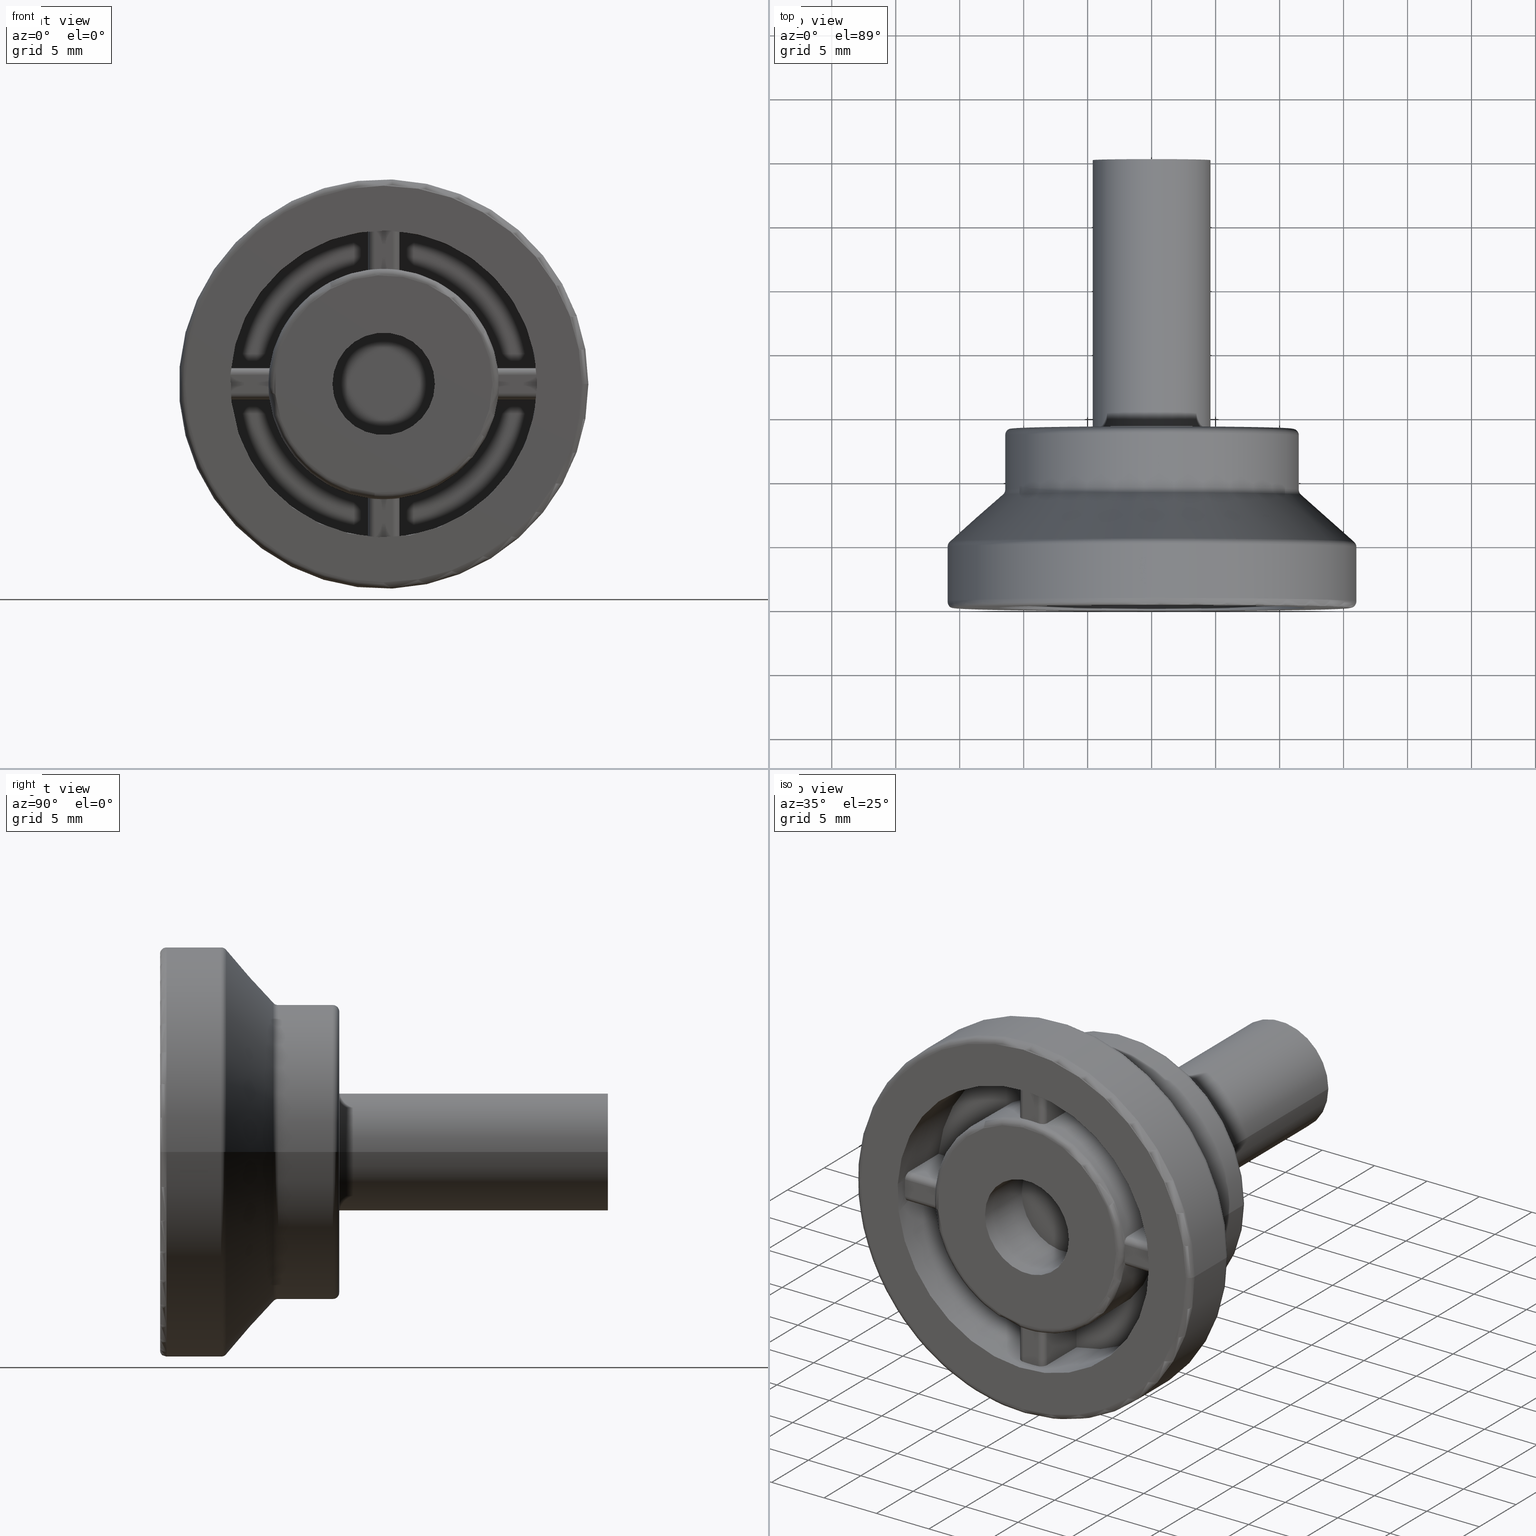
[diagram: canonical four-view strip — front | top / right | iso, engineering-drawing reading convention]
A machine part, canonical four-view strip (front | top / right | iso — engineering-drawing reading convention). The complete STEP part file that produces these views, byte-faithful:
ISO-10303-21;
HEADER;
/* Generated by software containing ST-Developer
 * from STEP Tools, Inc. (www.steptools.com) 
 */

FILE_DESCRIPTION(
/* description */ (''),
/* implementation_level */ '2;1');

FILE_NAME(
/* name */ '\\\\SYNOLOGYNAS\\web\\db2\\PR6-0-P\\\X2\B3C4BA74\X0\\\\X2\C870
C808BC1C\X0\.stp',
/* time_stamp */ '2024-08-29T13:05:26+09:00',
/* author */ ('user'),
/* organization */ (''),
/* preprocessor_version */ 'ST-DEVELOPER v15.6',
/* originating_system */ 'Autodesk Inventor 2015',
/* authorisation */ '');

FILE_SCHEMA (('AUTOMOTIVE_DESIGN { 1 0 10303 214 3 1 1 }'));
ENDSEC;

DATA;
#10=MECHANICAL_DESIGN_GEOMETRIC_PRESENTATION_REPRESENTATION('',(#13),#1343);
#11=SHAPE_REPRESENTATION_RELATIONSHIP('SRR','None',#1352,#12);
#12=ADVANCED_BREP_SHAPE_REPRESENTATION($,(#14),#1342);
#13=STYLED_ITEM('',(#1361),#14);
#14=MANIFOLD_SOLID_BREP('\X2\C194B9ACB4DC\X0\1',#703);
#15=CONICAL_SURFACE('',#748,13.75,48.3664606634298);
#16=FACE_BOUND('',#158,.T.);
#17=FACE_BOUND('',#163,.T.);
#18=FACE_BOUND('',#165,.T.);
#19=FACE_BOUND('',#167,.T.);
#20=FACE_BOUND('',#169,.T.);
#21=FACE_BOUND('',#171,.T.);
#22=FACE_BOUND('',#173,.T.);
#23=FACE_BOUND('',#175,.T.);
#24=FACE_BOUND('',#177,.T.);
#25=FACE_BOUND('',#179,.T.);
#26=FACE_BOUND('',#181,.T.);
#27=FACE_BOUND('',#192,.T.);
#28=FACE_BOUND('',#195,.T.);
#29=FACE_BOUND('',#197,.T.);
#30=FACE_BOUND('',#199,.T.);
#31=FACE_BOUND('',#202,.T.);
#32=CIRCLE('',#722,9.);
#33=CIRCLE('',#723,9.);
#34=CIRCLE('',#724,9.);
#35=CIRCLE('',#725,9.);
#36=CIRCLE('',#726,9.);
#37=CIRCLE('',#727,9.);
#38=CIRCLE('',#728,9.);
#39=CIRCLE('',#729,9.);
#40=CIRCLE('',#730,8.5);
#41=CIRCLE('',#732,9.);
#42=CIRCLE('',#734,9.);
#43=CIRCLE('',#736,9.);
#44=CIRCLE('',#738,4.);
#45=CIRCLE('',#740,16.);
#46=CIRCLE('',#741,15.5);
#47=CIRCLE('',#743,16.);
#48=CIRCLE('',#745,12.);
#49=CIRCLE('',#747,15.832181919415);
#50=CIRCLE('',#749,11.667818080585);
#51=CIRCLE('',#751,11.5);
#52=CIRCLE('',#753,11.5);
#53=CIRCLE('',#755,11.);
#54=CIRCLE('',#757,6.25);
#55=CIRCLE('',#759,12.);
#56=CIRCLE('',#761,12.);
#57=CIRCLE('',#763,12.);
#58=CIRCLE('',#765,12.);
#59=CIRCLE('',#767,12.);
#60=CIRCLE('',#768,9.);
#61=CIRCLE('',#770,12.);
#62=CIRCLE('',#772,12.);
#63=CIRCLE('',#775,12.);
#64=CIRCLE('',#777,4.);
#65=CIRCLE('',#781,6.25);
#66=CIRCLE('',#783,4.6);
#67=CIRCLE('',#785,4.59999999999999);
#68=TOROIDAL_SURFACE('',#721,8.5,0.5);
#69=TOROIDAL_SURFACE('',#739,15.5,0.5);
#70=TOROIDAL_SURFACE('',#746,15.5,0.5);
#71=TOROIDAL_SURFACE('',#750,12.,0.5);
#72=TOROIDAL_SURFACE('',#754,11.,0.5);
#73=PLANE('',#706);
#74=PLANE('',#708);
#75=PLANE('',#710);
#76=PLANE('',#712);
#77=PLANE('',#714);
#78=PLANE('',#716);
#79=PLANE('',#718);
#80=PLANE('',#720);
#81=PLANE('',#737);
#82=PLANE('',#744);
#83=PLANE('',#756);
#84=PLANE('',#758);
#85=PLANE('',#760);
#86=PLANE('',#762);
#87=PLANE('',#764);
#88=PLANE('',#766);
#89=PLANE('',#769);
#90=PLANE('',#771);
#91=PLANE('',#774);
#92=PLANE('',#778);
#93=PLANE('',#782);
#94=PLANE('',#784);
#95=FACE_OUTER_BOUND('',#141,.T.);
#96=FACE_OUTER_BOUND('',#142,.T.);
#97=FACE_OUTER_BOUND('',#143,.T.);
#98=FACE_OUTER_BOUND('',#144,.T.);
#99=FACE_OUTER_BOUND('',#145,.T.);
#100=FACE_OUTER_BOUND('',#146,.T.);
#101=FACE_OUTER_BOUND('',#147,.T.);
#102=FACE_OUTER_BOUND('',#148,.T.);
#103=FACE_OUTER_BOUND('',#149,.T.);
#104=FACE_OUTER_BOUND('',#150,.T.);
#105=FACE_OUTER_BOUND('',#151,.T.);
#106=FACE_OUTER_BOUND('',#152,.T.);
#107=FACE_OUTER_BOUND('',#153,.T.);
#108=FACE_OUTER_BOUND('',#154,.T.);
#109=FACE_OUTER_BOUND('',#155,.T.);
#110=FACE_OUTER_BOUND('',#156,.T.);
#111=FACE_OUTER_BOUND('',#157,.T.);
#112=FACE_OUTER_BOUND('',#159,.T.);
#113=FACE_OUTER_BOUND('',#160,.T.);
#114=FACE_OUTER_BOUND('',#161,.T.);
#115=FACE_OUTER_BOUND('',#162,.T.);
#116=FACE_OUTER_BOUND('',#164,.T.);
#117=FACE_OUTER_BOUND('',#166,.T.);
#118=FACE_OUTER_BOUND('',#168,.T.);
#119=FACE_OUTER_BOUND('',#170,.T.);
#120=FACE_OUTER_BOUND('',#172,.T.);
#121=FACE_OUTER_BOUND('',#174,.T.);
#122=FACE_OUTER_BOUND('',#176,.T.);
#123=FACE_OUTER_BOUND('',#178,.T.);
#124=FACE_OUTER_BOUND('',#180,.T.);
#125=FACE_OUTER_BOUND('',#182,.T.);
#126=FACE_OUTER_BOUND('',#183,.T.);
#127=FACE_OUTER_BOUND('',#184,.T.);
#128=FACE_OUTER_BOUND('',#185,.T.);
#129=FACE_OUTER_BOUND('',#186,.T.);
#130=FACE_OUTER_BOUND('',#187,.T.);
#131=FACE_OUTER_BOUND('',#188,.T.);
#132=FACE_OUTER_BOUND('',#189,.T.);
#133=FACE_OUTER_BOUND('',#190,.T.);
#134=FACE_OUTER_BOUND('',#191,.T.);
#135=FACE_OUTER_BOUND('',#193,.T.);
#136=FACE_OUTER_BOUND('',#194,.T.);
#137=FACE_OUTER_BOUND('',#196,.T.);
#138=FACE_OUTER_BOUND('',#198,.T.);
#139=FACE_OUTER_BOUND('',#200,.T.);
#140=FACE_OUTER_BOUND('',#201,.T.);
#141=EDGE_LOOP('',(#455,#456,#457,#458));
#142=EDGE_LOOP('',(#459,#460,#461,#462));
#143=EDGE_LOOP('',(#463,#464,#465,#466));
#144=EDGE_LOOP('',(#467,#468,#469,#470));
#145=EDGE_LOOP('',(#471,#472,#473,#474));
#146=EDGE_LOOP('',(#475,#476,#477,#478));
#147=EDGE_LOOP('',(#479,#480,#481,#482));
#148=EDGE_LOOP('',(#483,#484,#485,#486));
#149=EDGE_LOOP('',(#487,#488,#489,#490));
#150=EDGE_LOOP('',(#491,#492,#493,#494));
#151=EDGE_LOOP('',(#495,#496,#497,#498));
#152=EDGE_LOOP('',(#499,#500,#501,#502));
#153=EDGE_LOOP('',(#503,#504,#505,#506));
#154=EDGE_LOOP('',(#507,#508,#509,#510));
#155=EDGE_LOOP('',(#511,#512,#513,#514));
#156=EDGE_LOOP('',(#515,#516,#517,#518));
#157=EDGE_LOOP('',(#519,#520,#521,#522,#523,#524,#525,#526));
#158=EDGE_LOOP('',(#527));
#159=EDGE_LOOP('',(#528,#529,#530,#531,#532,#533));
#160=EDGE_LOOP('',(#534,#535,#536,#537,#538,#539));
#161=EDGE_LOOP('',(#540,#541,#542,#543,#544,#545));
#162=EDGE_LOOP('',(#546));
#163=EDGE_LOOP('',(#547));
#164=EDGE_LOOP('',(#548));
#165=EDGE_LOOP('',(#549));
#166=EDGE_LOOP('',(#550));
#167=EDGE_LOOP('',(#551));
#168=EDGE_LOOP('',(#552));
#169=EDGE_LOOP('',(#553));
#170=EDGE_LOOP('',(#554));
#171=EDGE_LOOP('',(#555));
#172=EDGE_LOOP('',(#556));
#173=EDGE_LOOP('',(#557));
#174=EDGE_LOOP('',(#558));
#175=EDGE_LOOP('',(#559));
#176=EDGE_LOOP('',(#560));
#177=EDGE_LOOP('',(#561));
#178=EDGE_LOOP('',(#562));
#179=EDGE_LOOP('',(#563));
#180=EDGE_LOOP('',(#564));
#181=EDGE_LOOP('',(#565));
#182=EDGE_LOOP('',(#566,#567,#568,#569));
#183=EDGE_LOOP('',(#570,#571,#572,#573));
#184=EDGE_LOOP('',(#574,#575,#576,#577));
#185=EDGE_LOOP('',(#578,#579,#580,#581));
#186=EDGE_LOOP('',(#582,#583,#584,#585));
#187=EDGE_LOOP('',(#586,#587,#588,#589));
#188=EDGE_LOOP('',(#590,#591,#592,#593));
#189=EDGE_LOOP('',(#594,#595,#596,#597,#598,#599));
#190=EDGE_LOOP('',(#600,#601,#602,#603));
#191=EDGE_LOOP('',(#604));
#192=EDGE_LOOP('',(#605));
#193=EDGE_LOOP('',(#606));
#194=EDGE_LOOP('',(#607,#608,#609,#610,#611,#612,#613,#614,#615,#616,#617,
#618,#619,#620,#621,#622,#623,#624,#625,#626,#627,#628,#629,#630));
#195=EDGE_LOOP('',(#631));
#196=EDGE_LOOP('',(#632));
#197=EDGE_LOOP('',(#633));
#198=EDGE_LOOP('',(#634));
#199=EDGE_LOOP('',(#635));
#200=EDGE_LOOP('',(#636));
#201=EDGE_LOOP('',(#637));
#202=EDGE_LOOP('',(#638));
#203=LINE('',#1008,#243);
#204=LINE('',#1020,#244);
#205=LINE('',#1023,#245);
#206=LINE('',#1025,#246);
#207=LINE('',#1026,#247);
#208=LINE('',#1041,#248);
#209=LINE('',#1053,#249);
#210=LINE('',#1056,#250);
#211=LINE('',#1058,#251);
#212=LINE('',#1059,#252);
#213=LINE('',#1074,#253);
#214=LINE('',#1086,#254);
#215=LINE('',#1089,#255);
#216=LINE('',#1091,#256);
#217=LINE('',#1092,#257);
#218=LINE('',#1107,#258);
#219=LINE('',#1119,#259);
#220=LINE('',#1122,#260);
#221=LINE('',#1124,#261);
#222=LINE('',#1125,#262);
#223=LINE('',#1140,#263);
#224=LINE('',#1152,#264);
#225=LINE('',#1155,#265);
#226=LINE('',#1157,#266);
#227=LINE('',#1158,#267);
#228=LINE('',#1173,#268);
#229=LINE('',#1185,#269);
#230=LINE('',#1188,#270);
#231=LINE('',#1190,#271);
#232=LINE('',#1191,#272);
#233=LINE('',#1206,#273);
#234=LINE('',#1218,#274);
#235=LINE('',#1221,#275);
#236=LINE('',#1223,#276);
#237=LINE('',#1224,#277);
#238=LINE('',#1239,#278);
#239=LINE('',#1251,#279);
#240=LINE('',#1254,#280);
#241=LINE('',#1256,#281);
#242=LINE('',#1257,#282);
#243=VECTOR('',#791,3.02106800618036);
#244=VECTOR('',#792,3.00732785274124);
#245=VECTOR('',#795,4.);
#246=VECTOR('',#796,3.02106800618036);
#247=VECTOR('',#797,4.);
#248=VECTOR('',#800,3.00732785274124);
#249=VECTOR('',#801,3.02106800618036);
#250=VECTOR('',#804,4.);
#251=VECTOR('',#805,3.02106800618036);
#252=VECTOR('',#806,4.);
#253=VECTOR('',#809,3.02106800618036);
#254=VECTOR('',#810,3.00732785274124);
#255=VECTOR('',#813,4.);
#256=VECTOR('',#814,3.02106800618036);
#257=VECTOR('',#815,4.);
#258=VECTOR('',#818,3.00732785274124);
#259=VECTOR('',#819,3.02106800618036);
#260=VECTOR('',#822,4.);
#261=VECTOR('',#823,3.02106800618036);
#262=VECTOR('',#824,4.);
#263=VECTOR('',#827,3.02106800618036);
#264=VECTOR('',#828,3.00732785274124);
#265=VECTOR('',#831,4.);
#266=VECTOR('',#832,3.02106800618036);
#267=VECTOR('',#833,4.);
#268=VECTOR('',#836,3.00732785274124);
#269=VECTOR('',#837,3.02106800618036);
#270=VECTOR('',#840,4.);
#271=VECTOR('',#841,3.02106800618036);
#272=VECTOR('',#842,4.);
#273=VECTOR('',#845,3.02106800618036);
#274=VECTOR('',#846,3.00732785274124);
#275=VECTOR('',#849,4.);
#276=VECTOR('',#850,3.02106800618036);
#277=VECTOR('',#851,4.);
#278=VECTOR('',#854,3.00732785274124);
#279=VECTOR('',#855,3.02106800618036);
#280=VECTOR('',#858,4.);
#281=VECTOR('',#859,3.02106800618036);
#282=VECTOR('',#860,4.);
#283=B_SPLINE_CURVE_WITH_KNOTS('',3,(#997,#998,#999,#1000,#1001,#1002,#1003,
#1004,#1005,#1006),.UNSPECIFIED.,.F.,.F.,(4,2,2,2,4),(0.,0.0188387469666945,
0.037677493933389,0.0566139082297067,0.0755503225260245),.UNSPECIFIED.);
#284=B_SPLINE_CURVE_WITH_KNOTS('',3,(#1010,#1011,#1012,#1013,#1014,#1015,
#1016,#1017,#1018,#1019),.UNSPECIFIED.,.F.,.F.,(4,2,2,2,4),(-0.0754565969526208,
-0.0565650622235629,-0.037673527494505,-0.0188367637472525,0.),
 .UNSPECIFIED.);
#285=B_SPLINE_CURVE_WITH_KNOTS('',3,(#1030,#1031,#1032,#1033,#1034,#1035,
#1036,#1037,#1038,#1039),.UNSPECIFIED.,.F.,.F.,(4,2,2,2,4),(0.226359241888503,
0.245295656184821,0.264232070481139,0.283070817447833,0.301909564414528),
 .UNSPECIFIED.);
#286=B_SPLINE_CURVE_WITH_KNOTS('',3,(#1043,#1044,#1045,#1046,#1047,#1048,
#1049,#1050,#1051,#1052),.UNSPECIFIED.,.F.,.F.,(4,2,2,2,4),(0.,0.0188367637472525,
0.0376735274945049,0.0565650622235629,0.0754565969526208),.UNSPECIFIED.);
#287=B_SPLINE_CURVE_WITH_KNOTS('',3,(#1063,#1064,#1065,#1066,#1067,#1068,
#1069,#1070,#1071,#1072),.UNSPECIFIED.,.F.,.F.,(4,2,2,2,4),(0.,0.0188387469666945,
0.037677493933389,0.0566139082297067,0.0755503225260245),.UNSPECIFIED.);
#288=B_SPLINE_CURVE_WITH_KNOTS('',3,(#1076,#1077,#1078,#1079,#1080,#1081,
#1082,#1083,#1084,#1085),.UNSPECIFIED.,.F.,.F.,(4,2,2,2,4),(-0.0754565969526208,
-0.0565650622235629,-0.037673527494505,-0.0188367637472525,0.),
 .UNSPECIFIED.);
#289=B_SPLINE_CURVE_WITH_KNOTS('',3,(#1096,#1097,#1098,#1099,#1100,#1101,
#1102,#1103,#1104,#1105),.UNSPECIFIED.,.F.,.F.,(4,2,2,2,4),(0.226359241888503,
0.245295656184821,0.264232070481139,0.283070817447833,0.301909564414528),
 .UNSPECIFIED.);
#290=B_SPLINE_CURVE_WITH_KNOTS('',3,(#1109,#1110,#1111,#1112,#1113,#1114,
#1115,#1116,#1117,#1118),.UNSPECIFIED.,.F.,.F.,(4,2,2,2,4),(0.,0.0188367637472525,
0.0376735274945049,0.0565650622235628,0.0754565969526208),.UNSPECIFIED.);
#291=B_SPLINE_CURVE_WITH_KNOTS('',3,(#1129,#1130,#1131,#1132,#1133,#1134,
#1135,#1136,#1137,#1138),.UNSPECIFIED.,.F.,.F.,(4,2,2,2,4),(0.,0.0188387469666945,
0.037677493933389,0.0566139082297067,0.0755503225260244),.UNSPECIFIED.);
#292=B_SPLINE_CURVE_WITH_KNOTS('',3,(#1142,#1143,#1144,#1145,#1146,#1147,
#1148,#1149,#1150,#1151),.UNSPECIFIED.,.F.,.F.,(4,2,2,2,4),(-0.0754565969526208,
-0.0565650622235629,-0.037673527494505,-0.0188367637472525,0.),
 .UNSPECIFIED.);
#293=B_SPLINE_CURVE_WITH_KNOTS('',3,(#1162,#1163,#1164,#1165,#1166,#1167,
#1168,#1169,#1170,#1171),.UNSPECIFIED.,.F.,.F.,(4,2,2,2,4),(0.226359242321466,
0.245295656617784,0.264232070914102,0.283070817880796,0.301909564847491),
 .UNSPECIFIED.);
#294=B_SPLINE_CURVE_WITH_KNOTS('',3,(#1175,#1176,#1177,#1178,#1179,#1180,
#1181,#1182,#1183,#1184),.UNSPECIFIED.,.F.,.F.,(4,2,2,2,4),(0.,0.0188367637472525,
0.0376735274945049,0.0565650622235628,0.0754565969526207),.UNSPECIFIED.);
#295=B_SPLINE_CURVE_WITH_KNOTS('',3,(#1195,#1196,#1197,#1198,#1199,#1200,
#1201,#1202,#1203,#1204),.UNSPECIFIED.,.F.,.F.,(4,2,2,2,4),(0.,0.0188387469666945,
0.037677493933389,0.0566139082297067,0.0755503225260245),.UNSPECIFIED.);
#296=B_SPLINE_CURVE_WITH_KNOTS('',3,(#1208,#1209,#1210,#1211,#1212,#1213,
#1214,#1215,#1216,#1217),.UNSPECIFIED.,.F.,.F.,(4,2,2,2,4),(-0.0754565969526208,
-0.0565650622235629,-0.0376735274945049,-0.0188367637472525,0.),
 .UNSPECIFIED.);
#297=B_SPLINE_CURVE_WITH_KNOTS('',3,(#1228,#1229,#1230,#1231,#1232,#1233,
#1234,#1235,#1236,#1237),.UNSPECIFIED.,.F.,.F.,(4,2,2,2,4),(0.226359242321466,
0.245295656617784,0.264232070914102,0.283070817880796,0.301909564847491),
 .UNSPECIFIED.);
#298=B_SPLINE_CURVE_WITH_KNOTS('',3,(#1241,#1242,#1243,#1244,#1245,#1246,
#1247,#1248,#1249,#1250),.UNSPECIFIED.,.F.,.F.,(4,2,2,2,4),(0.,0.0188367637472525,
0.0376735274945049,0.0565650622235628,0.0754565969526208),.UNSPECIFIED.);
#299=VERTEX_POINT('',#995);
#300=VERTEX_POINT('',#996);
#301=VERTEX_POINT('',#1007);
#302=VERTEX_POINT('',#1009);
#303=VERTEX_POINT('',#1022);
#304=VERTEX_POINT('',#1024);
#305=VERTEX_POINT('',#1028);
#306=VERTEX_POINT('',#1029);
#307=VERTEX_POINT('',#1040);
#308=VERTEX_POINT('',#1042);
#309=VERTEX_POINT('',#1055);
#310=VERTEX_POINT('',#1057);
#311=VERTEX_POINT('',#1061);
#312=VERTEX_POINT('',#1062);
#313=VERTEX_POINT('',#1073);
#314=VERTEX_POINT('',#1075);
#315=VERTEX_POINT('',#1088);
#316=VERTEX_POINT('',#1090);
#317=VERTEX_POINT('',#1094);
#318=VERTEX_POINT('',#1095);
#319=VERTEX_POINT('',#1106);
#320=VERTEX_POINT('',#1108);
#321=VERTEX_POINT('',#1121);
#322=VERTEX_POINT('',#1123);
#323=VERTEX_POINT('',#1127);
#324=VERTEX_POINT('',#1128);
#325=VERTEX_POINT('',#1139);
#326=VERTEX_POINT('',#1141);
#327=VERTEX_POINT('',#1154);
#328=VERTEX_POINT('',#1156);
#329=VERTEX_POINT('',#1160);
#330=VERTEX_POINT('',#1161);
#331=VERTEX_POINT('',#1172);
#332=VERTEX_POINT('',#1174);
#333=VERTEX_POINT('',#1187);
#334=VERTEX_POINT('',#1189);
#335=VERTEX_POINT('',#1193);
#336=VERTEX_POINT('',#1194);
#337=VERTEX_POINT('',#1205);
#338=VERTEX_POINT('',#1207);
#339=VERTEX_POINT('',#1220);
#340=VERTEX_POINT('',#1222);
#341=VERTEX_POINT('',#1226);
#342=VERTEX_POINT('',#1227);
#343=VERTEX_POINT('',#1238);
#344=VERTEX_POINT('',#1240);
#345=VERTEX_POINT('',#1253);
#346=VERTEX_POINT('',#1255);
#347=VERTEX_POINT('',#1267);
#348=VERTEX_POINT('',#1276);
#349=VERTEX_POINT('',#1279);
#350=VERTEX_POINT('',#1281);
#351=VERTEX_POINT('',#1284);
#352=VERTEX_POINT('',#1287);
#353=VERTEX_POINT('',#1290);
#354=VERTEX_POINT('',#1293);
#355=VERTEX_POINT('',#1296);
#356=VERTEX_POINT('',#1299);
#357=VERTEX_POINT('',#1302);
#358=VERTEX_POINT('',#1305);
#359=VERTEX_POINT('',#1326);
#360=VERTEX_POINT('',#1331);
#361=VERTEX_POINT('',#1334);
#362=VERTEX_POINT('',#1337);
#363=EDGE_CURVE('',#299,#300,#283,.T.);
#364=EDGE_CURVE('',#299,#301,#203,.T.);
#365=EDGE_CURVE('',#301,#302,#284,.F.);
#366=EDGE_CURVE('',#302,#300,#204,.T.);
#367=EDGE_CURVE('',#303,#299,#205,.T.);
#368=EDGE_CURVE('',#304,#303,#206,.T.);
#369=EDGE_CURVE('',#301,#304,#207,.T.);
#370=EDGE_CURVE('',#305,#306,#285,.F.);
#371=EDGE_CURVE('',#306,#307,#208,.T.);
#372=EDGE_CURVE('',#307,#308,#286,.F.);
#373=EDGE_CURVE('',#308,#305,#209,.T.);
#374=EDGE_CURVE('',#309,#308,#210,.T.);
#375=EDGE_CURVE('',#310,#309,#211,.T.);
#376=EDGE_CURVE('',#305,#310,#212,.T.);
#377=EDGE_CURVE('',#311,#312,#287,.T.);
#378=EDGE_CURVE('',#311,#313,#213,.T.);
#379=EDGE_CURVE('',#313,#314,#288,.F.);
#380=EDGE_CURVE('',#314,#312,#214,.T.);
#381=EDGE_CURVE('',#315,#311,#215,.T.);
#382=EDGE_CURVE('',#316,#315,#216,.T.);
#383=EDGE_CURVE('',#313,#316,#217,.T.);
#384=EDGE_CURVE('',#317,#318,#289,.F.);
#385=EDGE_CURVE('',#318,#319,#218,.T.);
#386=EDGE_CURVE('',#319,#320,#290,.F.);
#387=EDGE_CURVE('',#320,#317,#219,.T.);
#388=EDGE_CURVE('',#321,#320,#220,.T.);
#389=EDGE_CURVE('',#322,#321,#221,.T.);
#390=EDGE_CURVE('',#317,#322,#222,.T.);
#391=EDGE_CURVE('',#323,#324,#291,.T.);
#392=EDGE_CURVE('',#323,#325,#223,.T.);
#393=EDGE_CURVE('',#325,#326,#292,.F.);
#394=EDGE_CURVE('',#326,#324,#224,.T.);
#395=EDGE_CURVE('',#327,#323,#225,.T.);
#396=EDGE_CURVE('',#328,#327,#226,.T.);
#397=EDGE_CURVE('',#325,#328,#227,.T.);
#398=EDGE_CURVE('',#329,#330,#293,.F.);
#399=EDGE_CURVE('',#330,#331,#228,.T.);
#400=EDGE_CURVE('',#331,#332,#294,.F.);
#401=EDGE_CURVE('',#332,#329,#229,.T.);
#402=EDGE_CURVE('',#333,#332,#230,.T.);
#403=EDGE_CURVE('',#334,#333,#231,.T.);
#404=EDGE_CURVE('',#329,#334,#232,.T.);
#405=EDGE_CURVE('',#335,#336,#295,.T.);
#406=EDGE_CURVE('',#335,#337,#233,.T.);
#407=EDGE_CURVE('',#337,#338,#296,.F.);
#408=EDGE_CURVE('',#338,#336,#234,.T.);
#409=EDGE_CURVE('',#339,#335,#235,.T.);
#410=EDGE_CURVE('',#340,#339,#236,.T.);
#411=EDGE_CURVE('',#337,#340,#237,.T.);
#412=EDGE_CURVE('',#341,#342,#297,.F.);
#413=EDGE_CURVE('',#342,#343,#238,.T.);
#414=EDGE_CURVE('',#343,#344,#298,.F.);
#415=EDGE_CURVE('',#344,#341,#239,.T.);
#416=EDGE_CURVE('',#345,#344,#240,.T.);
#417=EDGE_CURVE('',#346,#345,#241,.T.);
#418=EDGE_CURVE('',#341,#346,#242,.T.);
#419=EDGE_CURVE('',#318,#324,#32,.T.);
#420=EDGE_CURVE('',#324,#330,#33,.T.);
#421=EDGE_CURVE('',#330,#336,#34,.T.);
#422=EDGE_CURVE('',#336,#342,#35,.T.);
#423=EDGE_CURVE('',#342,#300,#36,.T.);
#424=EDGE_CURVE('',#300,#306,#37,.T.);
#425=EDGE_CURVE('',#306,#312,#38,.T.);
#426=EDGE_CURVE('',#312,#318,#39,.T.);
#427=EDGE_CURVE('',#347,#347,#40,.T.);
#428=EDGE_CURVE('',#334,#339,#41,.T.);
#429=EDGE_CURVE('',#346,#303,#42,.T.);
#430=EDGE_CURVE('',#322,#327,#43,.T.);
#431=EDGE_CURVE('',#348,#348,#44,.T.);
#432=EDGE_CURVE('',#349,#349,#45,.T.);
#433=EDGE_CURVE('',#350,#350,#46,.T.);
#434=EDGE_CURVE('',#351,#351,#47,.T.);
#435=EDGE_CURVE('',#352,#352,#48,.T.);
#436=EDGE_CURVE('',#353,#353,#49,.T.);
#437=EDGE_CURVE('',#354,#354,#50,.T.);
#438=EDGE_CURVE('',#355,#355,#51,.T.);
#439=EDGE_CURVE('',#356,#356,#52,.T.);
#440=EDGE_CURVE('',#357,#357,#53,.T.);
#441=EDGE_CURVE('',#358,#358,#54,.T.);
#442=EDGE_CURVE('',#343,#338,#55,.T.);
#443=EDGE_CURVE('',#307,#302,#56,.T.);
#444=EDGE_CURVE('',#319,#314,#57,.T.);
#445=EDGE_CURVE('',#328,#321,#58,.T.);
#446=EDGE_CURVE('',#316,#309,#59,.T.);
#447=EDGE_CURVE('',#310,#315,#60,.T.);
#448=EDGE_CURVE('',#304,#345,#61,.T.);
#449=EDGE_CURVE('',#340,#333,#62,.T.);
#450=EDGE_CURVE('',#331,#326,#63,.T.);
#451=EDGE_CURVE('',#359,#359,#64,.T.);
#452=EDGE_CURVE('',#360,#360,#65,.T.);
#453=EDGE_CURVE('',#361,#361,#66,.T.);
#454=EDGE_CURVE('',#362,#362,#67,.T.);
#455=ORIENTED_EDGE('',*,*,#363,.F.);
#456=ORIENTED_EDGE('',*,*,#364,.T.);
#457=ORIENTED_EDGE('',*,*,#365,.T.);
#458=ORIENTED_EDGE('',*,*,#366,.T.);
#459=ORIENTED_EDGE('',*,*,#364,.F.);
#460=ORIENTED_EDGE('',*,*,#367,.F.);
#461=ORIENTED_EDGE('',*,*,#368,.F.);
#462=ORIENTED_EDGE('',*,*,#369,.F.);
#463=ORIENTED_EDGE('',*,*,#370,.T.);
#464=ORIENTED_EDGE('',*,*,#371,.T.);
#465=ORIENTED_EDGE('',*,*,#372,.T.);
#466=ORIENTED_EDGE('',*,*,#373,.T.);
#467=ORIENTED_EDGE('',*,*,#373,.F.);
#468=ORIENTED_EDGE('',*,*,#374,.F.);
#469=ORIENTED_EDGE('',*,*,#375,.F.);
#470=ORIENTED_EDGE('',*,*,#376,.F.);
#471=ORIENTED_EDGE('',*,*,#377,.F.);
#472=ORIENTED_EDGE('',*,*,#378,.T.);
#473=ORIENTED_EDGE('',*,*,#379,.T.);
#474=ORIENTED_EDGE('',*,*,#380,.T.);
#475=ORIENTED_EDGE('',*,*,#378,.F.);
#476=ORIENTED_EDGE('',*,*,#381,.F.);
#477=ORIENTED_EDGE('',*,*,#382,.F.);
#478=ORIENTED_EDGE('',*,*,#383,.F.);
#479=ORIENTED_EDGE('',*,*,#384,.T.);
#480=ORIENTED_EDGE('',*,*,#385,.T.);
#481=ORIENTED_EDGE('',*,*,#386,.T.);
#482=ORIENTED_EDGE('',*,*,#387,.T.);
#483=ORIENTED_EDGE('',*,*,#387,.F.);
#484=ORIENTED_EDGE('',*,*,#388,.F.);
#485=ORIENTED_EDGE('',*,*,#389,.F.);
#486=ORIENTED_EDGE('',*,*,#390,.F.);
#487=ORIENTED_EDGE('',*,*,#391,.F.);
#488=ORIENTED_EDGE('',*,*,#392,.T.);
#489=ORIENTED_EDGE('',*,*,#393,.T.);
#490=ORIENTED_EDGE('',*,*,#394,.T.);
#491=ORIENTED_EDGE('',*,*,#392,.F.);
#492=ORIENTED_EDGE('',*,*,#395,.F.);
#493=ORIENTED_EDGE('',*,*,#396,.F.);
#494=ORIENTED_EDGE('',*,*,#397,.F.);
#495=ORIENTED_EDGE('',*,*,#398,.T.);
#496=ORIENTED_EDGE('',*,*,#399,.T.);
#497=ORIENTED_EDGE('',*,*,#400,.T.);
#498=ORIENTED_EDGE('',*,*,#401,.T.);
#499=ORIENTED_EDGE('',*,*,#401,.F.);
#500=ORIENTED_EDGE('',*,*,#402,.F.);
#501=ORIENTED_EDGE('',*,*,#403,.F.);
#502=ORIENTED_EDGE('',*,*,#404,.F.);
#503=ORIENTED_EDGE('',*,*,#405,.F.);
#504=ORIENTED_EDGE('',*,*,#406,.T.);
#505=ORIENTED_EDGE('',*,*,#407,.T.);
#506=ORIENTED_EDGE('',*,*,#408,.T.);
#507=ORIENTED_EDGE('',*,*,#406,.F.);
#508=ORIENTED_EDGE('',*,*,#409,.F.);
#509=ORIENTED_EDGE('',*,*,#410,.F.);
#510=ORIENTED_EDGE('',*,*,#411,.F.);
#511=ORIENTED_EDGE('',*,*,#412,.T.);
#512=ORIENTED_EDGE('',*,*,#413,.T.);
#513=ORIENTED_EDGE('',*,*,#414,.T.);
#514=ORIENTED_EDGE('',*,*,#415,.T.);
#515=ORIENTED_EDGE('',*,*,#415,.F.);
#516=ORIENTED_EDGE('',*,*,#416,.F.);
#517=ORIENTED_EDGE('',*,*,#417,.F.);
#518=ORIENTED_EDGE('',*,*,#418,.F.);
#519=ORIENTED_EDGE('',*,*,#419,.T.);
#520=ORIENTED_EDGE('',*,*,#420,.T.);
#521=ORIENTED_EDGE('',*,*,#421,.T.);
#522=ORIENTED_EDGE('',*,*,#422,.T.);
#523=ORIENTED_EDGE('',*,*,#423,.T.);
#524=ORIENTED_EDGE('',*,*,#424,.T.);
#525=ORIENTED_EDGE('',*,*,#425,.T.);
#526=ORIENTED_EDGE('',*,*,#426,.T.);
#527=ORIENTED_EDGE('',*,*,#427,.T.);
#528=ORIENTED_EDGE('',*,*,#421,.F.);
#529=ORIENTED_EDGE('',*,*,#398,.F.);
#530=ORIENTED_EDGE('',*,*,#404,.T.);
#531=ORIENTED_EDGE('',*,*,#428,.T.);
#532=ORIENTED_EDGE('',*,*,#409,.T.);
#533=ORIENTED_EDGE('',*,*,#405,.T.);
#534=ORIENTED_EDGE('',*,*,#423,.F.);
#535=ORIENTED_EDGE('',*,*,#412,.F.);
#536=ORIENTED_EDGE('',*,*,#418,.T.);
#537=ORIENTED_EDGE('',*,*,#429,.T.);
#538=ORIENTED_EDGE('',*,*,#367,.T.);
#539=ORIENTED_EDGE('',*,*,#363,.T.);
#540=ORIENTED_EDGE('',*,*,#419,.F.);
#541=ORIENTED_EDGE('',*,*,#384,.F.);
#542=ORIENTED_EDGE('',*,*,#390,.T.);
#543=ORIENTED_EDGE('',*,*,#430,.T.);
#544=ORIENTED_EDGE('',*,*,#395,.T.);
#545=ORIENTED_EDGE('',*,*,#391,.T.);
#546=ORIENTED_EDGE('',*,*,#427,.F.);
#547=ORIENTED_EDGE('',*,*,#431,.T.);
#548=ORIENTED_EDGE('',*,*,#432,.T.);
#549=ORIENTED_EDGE('',*,*,#433,.T.);
#550=ORIENTED_EDGE('',*,*,#434,.F.);
#551=ORIENTED_EDGE('',*,*,#432,.F.);
#552=ORIENTED_EDGE('',*,*,#433,.F.);
#553=ORIENTED_EDGE('',*,*,#435,.T.);
#554=ORIENTED_EDGE('',*,*,#436,.T.);
#555=ORIENTED_EDGE('',*,*,#434,.T.);
#556=ORIENTED_EDGE('',*,*,#437,.F.);
#557=ORIENTED_EDGE('',*,*,#436,.F.);
#558=ORIENTED_EDGE('',*,*,#438,.T.);
#559=ORIENTED_EDGE('',*,*,#437,.T.);
#560=ORIENTED_EDGE('',*,*,#439,.F.);
#561=ORIENTED_EDGE('',*,*,#438,.F.);
#562=ORIENTED_EDGE('',*,*,#440,.T.);
#563=ORIENTED_EDGE('',*,*,#439,.T.);
#564=ORIENTED_EDGE('',*,*,#440,.F.);
#565=ORIENTED_EDGE('',*,*,#441,.T.);
#566=ORIENTED_EDGE('',*,*,#408,.F.);
#567=ORIENTED_EDGE('',*,*,#442,.F.);
#568=ORIENTED_EDGE('',*,*,#413,.F.);
#569=ORIENTED_EDGE('',*,*,#422,.F.);
#570=ORIENTED_EDGE('',*,*,#366,.F.);
#571=ORIENTED_EDGE('',*,*,#443,.F.);
#572=ORIENTED_EDGE('',*,*,#371,.F.);
#573=ORIENTED_EDGE('',*,*,#424,.F.);
#574=ORIENTED_EDGE('',*,*,#380,.F.);
#575=ORIENTED_EDGE('',*,*,#444,.F.);
#576=ORIENTED_EDGE('',*,*,#385,.F.);
#577=ORIENTED_EDGE('',*,*,#426,.F.);
#578=ORIENTED_EDGE('',*,*,#389,.T.);
#579=ORIENTED_EDGE('',*,*,#445,.F.);
#580=ORIENTED_EDGE('',*,*,#396,.T.);
#581=ORIENTED_EDGE('',*,*,#430,.F.);
#582=ORIENTED_EDGE('',*,*,#375,.T.);
#583=ORIENTED_EDGE('',*,*,#446,.F.);
#584=ORIENTED_EDGE('',*,*,#382,.T.);
#585=ORIENTED_EDGE('',*,*,#447,.F.);
#586=ORIENTED_EDGE('',*,*,#417,.T.);
#587=ORIENTED_EDGE('',*,*,#448,.F.);
#588=ORIENTED_EDGE('',*,*,#368,.T.);
#589=ORIENTED_EDGE('',*,*,#429,.F.);
#590=ORIENTED_EDGE('',*,*,#410,.T.);
#591=ORIENTED_EDGE('',*,*,#428,.F.);
#592=ORIENTED_EDGE('',*,*,#403,.T.);
#593=ORIENTED_EDGE('',*,*,#449,.F.);
#594=ORIENTED_EDGE('',*,*,#425,.F.);
#595=ORIENTED_EDGE('',*,*,#370,.F.);
#596=ORIENTED_EDGE('',*,*,#376,.T.);
#597=ORIENTED_EDGE('',*,*,#447,.T.);
#598=ORIENTED_EDGE('',*,*,#381,.T.);
#599=ORIENTED_EDGE('',*,*,#377,.T.);
#600=ORIENTED_EDGE('',*,*,#394,.F.);
#601=ORIENTED_EDGE('',*,*,#450,.F.);
#602=ORIENTED_EDGE('',*,*,#399,.F.);
#603=ORIENTED_EDGE('',*,*,#420,.F.);
#604=ORIENTED_EDGE('',*,*,#431,.F.);
#605=ORIENTED_EDGE('',*,*,#451,.T.);
#606=ORIENTED_EDGE('',*,*,#451,.F.);
#607=ORIENTED_EDGE('',*,*,#411,.T.);
#608=ORIENTED_EDGE('',*,*,#449,.T.);
#609=ORIENTED_EDGE('',*,*,#402,.T.);
#610=ORIENTED_EDGE('',*,*,#400,.F.);
#611=ORIENTED_EDGE('',*,*,#450,.T.);
#612=ORIENTED_EDGE('',*,*,#393,.F.);
#613=ORIENTED_EDGE('',*,*,#397,.T.);
#614=ORIENTED_EDGE('',*,*,#445,.T.);
#615=ORIENTED_EDGE('',*,*,#388,.T.);
#616=ORIENTED_EDGE('',*,*,#386,.F.);
#617=ORIENTED_EDGE('',*,*,#444,.T.);
#618=ORIENTED_EDGE('',*,*,#379,.F.);
#619=ORIENTED_EDGE('',*,*,#383,.T.);
#620=ORIENTED_EDGE('',*,*,#446,.T.);
#621=ORIENTED_EDGE('',*,*,#374,.T.);
#622=ORIENTED_EDGE('',*,*,#372,.F.);
#623=ORIENTED_EDGE('',*,*,#443,.T.);
#624=ORIENTED_EDGE('',*,*,#365,.F.);
#625=ORIENTED_EDGE('',*,*,#369,.T.);
#626=ORIENTED_EDGE('',*,*,#448,.T.);
#627=ORIENTED_EDGE('',*,*,#416,.T.);
#628=ORIENTED_EDGE('',*,*,#414,.F.);
#629=ORIENTED_EDGE('',*,*,#442,.T.);
#630=ORIENTED_EDGE('',*,*,#407,.F.);
#631=ORIENTED_EDGE('',*,*,#435,.F.);
#632=ORIENTED_EDGE('',*,*,#452,.T.);
#633=ORIENTED_EDGE('',*,*,#441,.F.);
#634=ORIENTED_EDGE('',*,*,#452,.F.);
#635=ORIENTED_EDGE('',*,*,#453,.F.);
#636=ORIENTED_EDGE('',*,*,#454,.F.);
#637=ORIENTED_EDGE('',*,*,#453,.T.);
#638=ORIENTED_EDGE('',*,*,#454,.T.);
#639=CYLINDRICAL_SURFACE('',#705,0.5);
#640=CYLINDRICAL_SURFACE('',#707,0.5);
#641=CYLINDRICAL_SURFACE('',#709,0.5);
#642=CYLINDRICAL_SURFACE('',#711,0.5);
#643=CYLINDRICAL_SURFACE('',#713,0.5);
#644=CYLINDRICAL_SURFACE('',#715,0.5);
#645=CYLINDRICAL_SURFACE('',#717,0.5);
#646=CYLINDRICAL_SURFACE('',#719,0.5);
#647=CYLINDRICAL_SURFACE('',#731,9.);
#648=CYLINDRICAL_SURFACE('',#733,9.);
#649=CYLINDRICAL_SURFACE('',#735,9.);
#650=CYLINDRICAL_SURFACE('',#742,16.);
#651=CYLINDRICAL_SURFACE('',#752,11.5);
#652=CYLINDRICAL_SURFACE('',#773,9.);
#653=CYLINDRICAL_SURFACE('',#776,4.);
#654=CYLINDRICAL_SURFACE('',#779,12.);
#655=CYLINDRICAL_SURFACE('',#780,6.25);
#656=CYLINDRICAL_SURFACE('',#786,4.6);
#657=ADVANCED_FACE('',(#95),#639,.T.);
#658=ADVANCED_FACE('',(#96),#73,.T.);
#659=ADVANCED_FACE('',(#97),#640,.T.);
#660=ADVANCED_FACE('',(#98),#74,.T.);
#661=ADVANCED_FACE('',(#99),#641,.T.);
#662=ADVANCED_FACE('',(#100),#75,.T.);
#663=ADVANCED_FACE('',(#101),#642,.T.);
#664=ADVANCED_FACE('',(#102),#76,.T.);
#665=ADVANCED_FACE('',(#103),#643,.T.);
#666=ADVANCED_FACE('',(#104),#77,.T.);
#667=ADVANCED_FACE('',(#105),#644,.T.);
#668=ADVANCED_FACE('',(#106),#78,.T.);
#669=ADVANCED_FACE('',(#107),#645,.T.);
#670=ADVANCED_FACE('',(#108),#79,.T.);
#671=ADVANCED_FACE('',(#109),#646,.T.);
#672=ADVANCED_FACE('',(#110),#80,.T.);
#673=ADVANCED_FACE('',(#111,#16),#68,.T.);
#674=ADVANCED_FACE('',(#112),#647,.T.);
#675=ADVANCED_FACE('',(#113),#648,.T.);
#676=ADVANCED_FACE('',(#114),#649,.T.);
#677=ADVANCED_FACE('',(#115,#17),#81,.T.);
#678=ADVANCED_FACE('',(#116,#18),#69,.T.);
#679=ADVANCED_FACE('',(#117,#19),#650,.T.);
#680=ADVANCED_FACE('',(#118,#20),#82,.T.);
#681=ADVANCED_FACE('',(#119,#21),#70,.T.);
#682=ADVANCED_FACE('',(#120,#22),#15,.T.);
#683=ADVANCED_FACE('',(#121,#23),#71,.F.);
#684=ADVANCED_FACE('',(#122,#24),#651,.T.);
#685=ADVANCED_FACE('',(#123,#25),#72,.T.);
#686=ADVANCED_FACE('',(#124,#26),#83,.T.);
#687=ADVANCED_FACE('',(#125),#84,.T.);
#688=ADVANCED_FACE('',(#126),#85,.T.);
#689=ADVANCED_FACE('',(#127),#86,.T.);
#690=ADVANCED_FACE('',(#128),#87,.T.);
#691=ADVANCED_FACE('',(#129),#88,.T.);
#692=ADVANCED_FACE('',(#130),#89,.T.);
#693=ADVANCED_FACE('',(#131),#90,.T.);
#694=ADVANCED_FACE('',(#132),#652,.T.);
#695=ADVANCED_FACE('',(#133),#91,.T.);
#696=ADVANCED_FACE('',(#134,#27),#653,.F.);
#697=ADVANCED_FACE('',(#135),#92,.T.);
#698=ADVANCED_FACE('',(#136,#28),#654,.F.);
#699=ADVANCED_FACE('',(#137,#29),#655,.F.);
#700=ADVANCED_FACE('',(#138,#30),#93,.F.);
#701=ADVANCED_FACE('',(#139),#94,.T.);
#702=ADVANCED_FACE('',(#140,#31),#656,.T.);
#703=CLOSED_SHELL('',(#657,#658,#659,#660,#661,#662,#663,#664,#665,#666,
#667,#668,#669,#670,#671,#672,#673,#674,#675,#676,#677,#678,#679,#680,#681,
#682,#683,#684,#685,#686,#687,#688,#689,#690,#691,#692,#693,#694,#695,#696,
#697,#698,#699,#700,#701,#702));
#704=AXIS2_PLACEMENT_3D('placement',#993,#787,#788);
#705=AXIS2_PLACEMENT_3D('',#994,#789,#790);
#706=AXIS2_PLACEMENT_3D('',#1021,#793,#794);
#707=AXIS2_PLACEMENT_3D('',#1027,#798,#799);
#708=AXIS2_PLACEMENT_3D('',#1054,#802,#803);
#709=AXIS2_PLACEMENT_3D('',#1060,#807,#808);
#710=AXIS2_PLACEMENT_3D('',#1087,#811,#812);
#711=AXIS2_PLACEMENT_3D('',#1093,#816,#817);
#712=AXIS2_PLACEMENT_3D('',#1120,#820,#821);
#713=AXIS2_PLACEMENT_3D('',#1126,#825,#826);
#714=AXIS2_PLACEMENT_3D('',#1153,#829,#830);
#715=AXIS2_PLACEMENT_3D('',#1159,#834,#835);
#716=AXIS2_PLACEMENT_3D('',#1186,#838,#839);
#717=AXIS2_PLACEMENT_3D('',#1192,#843,#844);
#718=AXIS2_PLACEMENT_3D('',#1219,#847,#848);
#719=AXIS2_PLACEMENT_3D('',#1225,#852,#853);
#720=AXIS2_PLACEMENT_3D('',#1252,#856,#857);
#721=AXIS2_PLACEMENT_3D('',#1258,#861,#862);
#722=AXIS2_PLACEMENT_3D('',#1259,#863,#864);
#723=AXIS2_PLACEMENT_3D('',#1260,#865,#866);
#724=AXIS2_PLACEMENT_3D('',#1261,#867,#868);
#725=AXIS2_PLACEMENT_3D('',#1262,#869,#870);
#726=AXIS2_PLACEMENT_3D('',#1263,#871,#872);
#727=AXIS2_PLACEMENT_3D('',#1264,#873,#874);
#728=AXIS2_PLACEMENT_3D('',#1265,#875,#876);
#729=AXIS2_PLACEMENT_3D('',#1266,#877,#878);
#730=AXIS2_PLACEMENT_3D('',#1268,#879,#880);
#731=AXIS2_PLACEMENT_3D('',#1269,#881,#882);
#732=AXIS2_PLACEMENT_3D('',#1270,#883,#884);
#733=AXIS2_PLACEMENT_3D('',#1271,#885,#886);
#734=AXIS2_PLACEMENT_3D('',#1272,#887,#888);
#735=AXIS2_PLACEMENT_3D('',#1273,#889,#890);
#736=AXIS2_PLACEMENT_3D('',#1274,#891,#892);
#737=AXIS2_PLACEMENT_3D('',#1275,#893,#894);
#738=AXIS2_PLACEMENT_3D('',#1277,#895,#896);
#739=AXIS2_PLACEMENT_3D('',#1278,#897,#898);
#740=AXIS2_PLACEMENT_3D('',#1280,#899,#900);
#741=AXIS2_PLACEMENT_3D('',#1282,#901,#902);
#742=AXIS2_PLACEMENT_3D('',#1283,#903,#904);
#743=AXIS2_PLACEMENT_3D('',#1285,#905,#906);
#744=AXIS2_PLACEMENT_3D('',#1286,#907,#908);
#745=AXIS2_PLACEMENT_3D('',#1288,#909,#910);
#746=AXIS2_PLACEMENT_3D('',#1289,#911,#912);
#747=AXIS2_PLACEMENT_3D('',#1291,#913,#914);
#748=AXIS2_PLACEMENT_3D('',#1292,#915,#916);
#749=AXIS2_PLACEMENT_3D('',#1294,#917,#918);
#750=AXIS2_PLACEMENT_3D('',#1295,#919,#920);
#751=AXIS2_PLACEMENT_3D('',#1297,#921,#922);
#752=AXIS2_PLACEMENT_3D('',#1298,#923,#924);
#753=AXIS2_PLACEMENT_3D('',#1300,#925,#926);
#754=AXIS2_PLACEMENT_3D('',#1301,#927,#928);
#755=AXIS2_PLACEMENT_3D('',#1303,#929,#930);
#756=AXIS2_PLACEMENT_3D('',#1304,#931,#932);
#757=AXIS2_PLACEMENT_3D('',#1306,#933,#934);
#758=AXIS2_PLACEMENT_3D('',#1307,#935,#936);
#759=AXIS2_PLACEMENT_3D('',#1308,#937,#938);
#760=AXIS2_PLACEMENT_3D('',#1309,#939,#940);
#761=AXIS2_PLACEMENT_3D('',#1310,#941,#942);
#762=AXIS2_PLACEMENT_3D('',#1311,#943,#944);
#763=AXIS2_PLACEMENT_3D('',#1312,#945,#946);
#764=AXIS2_PLACEMENT_3D('',#1313,#947,#948);
#765=AXIS2_PLACEMENT_3D('',#1314,#949,#950);
#766=AXIS2_PLACEMENT_3D('',#1315,#951,#952);
#767=AXIS2_PLACEMENT_3D('',#1316,#953,#954);
#768=AXIS2_PLACEMENT_3D('',#1317,#955,#956);
#769=AXIS2_PLACEMENT_3D('',#1318,#957,#958);
#770=AXIS2_PLACEMENT_3D('',#1319,#959,#960);
#771=AXIS2_PLACEMENT_3D('',#1320,#961,#962);
#772=AXIS2_PLACEMENT_3D('',#1321,#963,#964);
#773=AXIS2_PLACEMENT_3D('',#1322,#965,#966);
#774=AXIS2_PLACEMENT_3D('',#1323,#967,#968);
#775=AXIS2_PLACEMENT_3D('',#1324,#969,#970);
#776=AXIS2_PLACEMENT_3D('',#1325,#971,#972);
#777=AXIS2_PLACEMENT_3D('',#1327,#973,#974);
#778=AXIS2_PLACEMENT_3D('',#1328,#975,#976);
#779=AXIS2_PLACEMENT_3D('',#1329,#977,#978);
#780=AXIS2_PLACEMENT_3D('',#1330,#979,#980);
#781=AXIS2_PLACEMENT_3D('',#1332,#981,#982);
#782=AXIS2_PLACEMENT_3D('',#1333,#983,#984);
#783=AXIS2_PLACEMENT_3D('',#1335,#985,#986);
#784=AXIS2_PLACEMENT_3D('',#1336,#987,#988);
#785=AXIS2_PLACEMENT_3D('',#1338,#989,#990);
#786=AXIS2_PLACEMENT_3D('',#1339,#991,#992);
#787=DIRECTION('axis',(0.,0.,1.));
#788=DIRECTION('refdir',(1.,0.,0.));
#789=DIRECTION('center_axis',(-1.,0.,-1.23337393763792E-17));
#790=DIRECTION('ref_axis',(0.,-0.707106781186548,0.707106781186548));
#791=DIRECTION('',(-1.,0.,-1.23337393763792E-17));
#792=DIRECTION('',(1.,0.,1.23337393763792E-17));
#793=DIRECTION('center_axis',(-1.23337393763792E-17,0.,1.));
#794=DIRECTION('ref_axis',(-1.,8.88178419700125E-17,-2.22044604925031E-17));
#795=DIRECTION('',(0.,-1.,0.));
#796=DIRECTION('',(1.,6.34413156928661E-17,1.23337393763792E-17));
#797=DIRECTION('',(0.,1.,0.));
#798=DIRECTION('center_axis',(1.,0.,2.32595620453092E-16));
#799=DIRECTION('ref_axis',(0.,-0.707106781186547,-0.707106781186548));
#800=DIRECTION('',(-1.,0.,-2.32595620453092E-16));
#801=DIRECTION('',(1.,0.,2.32595620453092E-16));
#802=DIRECTION('center_axis',(2.32595620453092E-16,0.,-1.));
#803=DIRECTION('ref_axis',(1.,-8.88178419700125E-17,2.22044604925031E-16));
#804=DIRECTION('',(0.,-1.,0.));
#805=DIRECTION('',(-1.,-6.34413156928661E-17,-2.32595620453092E-16));
#806=DIRECTION('',(0.,1.,0.));
#807=DIRECTION('center_axis',(-4.88986005809885E-17,0.,-1.));
#808=DIRECTION('ref_axis',(-0.707106781186548,-0.707106781186548,0.));
#809=DIRECTION('',(-4.88986005809885E-17,0.,-1.));
#810=DIRECTION('',(4.88986005809885E-17,0.,1.));
#811=DIRECTION('center_axis',(-1.,0.,4.88986005809885E-17));
#812=DIRECTION('ref_axis',(-4.44089209850063E-17,8.88178419700125E-17,-1.));
#813=DIRECTION('',(0.,-1.,0.));
#814=DIRECTION('',(4.88986005809885E-17,3.10219155639786E-33,1.));
#815=DIRECTION('',(0.,1.,0.));
#816=DIRECTION('center_axis',(-1.71363280495724E-16,0.,1.));
#817=DIRECTION('ref_axis',(0.707106781186548,-0.707106781186547,0.));
#818=DIRECTION('',(1.71363280495724E-16,0.,-1.));
#819=DIRECTION('',(-1.71363280495724E-16,0.,1.));
#820=DIRECTION('center_axis',(1.,0.,1.71363280495724E-16));
#821=DIRECTION('ref_axis',(-1.77635683940025E-16,-8.88178419700125E-17,
1.));
#822=DIRECTION('',(0.,-1.,0.));
#823=DIRECTION('',(1.71363280495724E-16,1.08715119760944E-32,-1.));
#824=DIRECTION('',(0.,1.,0.));
#825=DIRECTION('center_axis',(1.,0.,-1.10130940538356E-16));
#826=DIRECTION('ref_axis',(0.,-0.707106781186547,-0.707106781186548));
#827=DIRECTION('',(1.,0.,-1.10130940538356E-16));
#828=DIRECTION('',(-1.,0.,1.10130940538356E-16));
#829=DIRECTION('center_axis',(-1.10130940538356E-16,0.,-1.));
#830=DIRECTION('ref_axis',(1.,8.88178419700125E-17,-1.11022302462516E-16));
#831=DIRECTION('',(0.,-1.,0.));
#832=DIRECTION('',(-1.,-6.34413156928661E-17,1.10130940538356E-16));
#833=DIRECTION('',(0.,1.,0.));
#834=DIRECTION('center_axis',(-1.,0.,-1.10130940538356E-16));
#835=DIRECTION('ref_axis',(0.,-0.707106781186548,0.707106781186548));
#836=DIRECTION('',(1.,0.,1.10130940538356E-16));
#837=DIRECTION('',(-1.,0.,-1.10130940538356E-16));
#838=DIRECTION('center_axis',(-1.10130940538356E-16,0.,1.));
#839=DIRECTION('ref_axis',(-1.,-8.88178419700125E-17,-1.11022302462516E-16));
#840=DIRECTION('',(0.,-1.,0.));
#841=DIRECTION('',(1.,6.34413156928661E-17,1.10130940538356E-16));
#842=DIRECTION('',(0.,1.,0.));
#843=DIRECTION('center_axis',(-7.35660793337468E-17,0.,1.));
#844=DIRECTION('ref_axis',(0.707106781186548,-0.707106781186548,0.));
#845=DIRECTION('',(-7.35660793337468E-17,0.,1.));
#846=DIRECTION('',(7.35660793337468E-17,0.,-1.));
#847=DIRECTION('center_axis',(1.,0.,7.35660793337468E-17));
#848=DIRECTION('ref_axis',(-6.66133814775094E-17,8.88178419700125E-17,1.));
#849=DIRECTION('',(0.,-1.,0.));
#850=DIRECTION('',(7.35660793337468E-17,4.66712886329866E-33,-1.));
#851=DIRECTION('',(0.,1.,0.));
#852=DIRECTION('center_axis',(2.93827960410459E-16,0.,-1.));
#853=DIRECTION('ref_axis',(-0.707106781186548,-0.707106781186548,0.));
#854=DIRECTION('',(-2.93827960410459E-16,0.,1.));
#855=DIRECTION('',(2.93827960410459E-16,0.,-1.));
#856=DIRECTION('center_axis',(-1.,0.,-2.93827960410459E-16));
#857=DIRECTION('ref_axis',(2.88657986402541E-16,-8.88178419700125E-17,-1.));
#858=DIRECTION('',(0.,-1.,0.));
#859=DIRECTION('',(-2.93827960410459E-16,-1.86408323957909E-32,1.));
#860=DIRECTION('',(0.,1.,0.));
#861=DIRECTION('center_axis',(6.34413156928661E-17,-1.,0.));
#862=DIRECTION('ref_axis',(0.,0.,-1.));
#863=DIRECTION('center_axis',(0.,-1.,0.));
#864=DIRECTION('ref_axis',(-1.,0.,0.));
#865=DIRECTION('center_axis',(0.,-1.,0.));
#866=DIRECTION('ref_axis',(-1.,0.,0.));
#867=DIRECTION('center_axis',(0.,-1.,0.));
#868=DIRECTION('ref_axis',(-1.,0.,0.));
#869=DIRECTION('center_axis',(0.,-1.,0.));
#870=DIRECTION('ref_axis',(-1.,0.,0.));
#871=DIRECTION('center_axis',(0.,-1.,0.));
#872=DIRECTION('ref_axis',(-1.,0.,0.));
#873=DIRECTION('center_axis',(0.,-1.,0.));
#874=DIRECTION('ref_axis',(-1.,0.,0.));
#875=DIRECTION('center_axis',(0.,-1.,0.));
#876=DIRECTION('ref_axis',(-1.,0.,0.));
#877=DIRECTION('center_axis',(0.,-1.,0.));
#878=DIRECTION('ref_axis',(-1.,0.,0.));
#879=DIRECTION('center_axis',(-6.34413156928661E-17,1.,0.));
#880=DIRECTION('ref_axis',(-1.,-6.34413156928661E-17,0.));
#881=DIRECTION('center_axis',(0.,1.,0.));
#882=DIRECTION('ref_axis',(-1.,0.,0.));
#883=DIRECTION('center_axis',(6.34413156928661E-17,-1.,0.));
#884=DIRECTION('ref_axis',(-1.,0.,0.));
#885=DIRECTION('center_axis',(0.,1.,0.));
#886=DIRECTION('ref_axis',(-1.,0.,0.));
#887=DIRECTION('center_axis',(6.34413156928661E-17,-1.,0.));
#888=DIRECTION('ref_axis',(-1.,0.,0.));
#889=DIRECTION('center_axis',(0.,1.,0.));
#890=DIRECTION('ref_axis',(-1.,0.,0.));
#891=DIRECTION('center_axis',(6.34413156928661E-17,-1.,0.));
#892=DIRECTION('ref_axis',(-1.,0.,0.));
#893=DIRECTION('center_axis',(6.34413156928661E-17,-1.,0.));
#894=DIRECTION('ref_axis',(0.,0.,-1.));
#895=DIRECTION('center_axis',(-6.34413156928661E-17,1.,0.));
#896=DIRECTION('ref_axis',(-1.,-1.00929365875014E-16,0.));
#897=DIRECTION('center_axis',(6.34413156928661E-17,-1.,0.));
#898=DIRECTION('ref_axis',(0.,0.,-1.));
#899=DIRECTION('center_axis',(6.34413156928661E-17,-1.,0.));
#900=DIRECTION('ref_axis',(-1.,-6.50521303491303E-17,1.22464679914735E-16));
#901=DIRECTION('center_axis',(-6.34413156928661E-17,1.,0.));
#902=DIRECTION('ref_axis',(-1.,-6.34413156928661E-17,1.22464679914735E-16));
#903=DIRECTION('center_axis',(6.34413156928661E-17,-1.,0.));
#904=DIRECTION('ref_axis',(1.,0.,0.));
#905=DIRECTION('center_axis',(-6.34413156928661E-17,1.,0.));
#906=DIRECTION('ref_axis',(-1.,-6.28837260041592E-17,1.22464679914735E-16));
#907=DIRECTION('center_axis',(6.34413156928661E-17,-1.,0.));
#908=DIRECTION('ref_axis',(0.,0.,-1.));
#909=DIRECTION('center_axis',(-6.34413156928661E-17,1.,0.));
#910=DIRECTION('ref_axis',(-1.,0.,0.));
#911=DIRECTION('center_axis',(6.34413156928661E-17,-1.,0.));
#912=DIRECTION('ref_axis',(0.,0.,-1.));
#913=DIRECTION('center_axis',(7.01244484352275E-17,-1.,7.01244484352276E-17));
#914=DIRECTION('ref_axis',(-1.,-7.01244484352275E-17,0.));
#915=DIRECTION('center_axis',(6.34413156928661E-17,-1.,0.));
#916=DIRECTION('ref_axis',(1.,0.,0.));
#917=DIRECTION('center_axis',(0.,1.,0.));
#918=DIRECTION('ref_axis',(-1.,0.,0.));
#919=DIRECTION('center_axis',(6.34413156928661E-17,-1.,0.));
#920=DIRECTION('ref_axis',(0.,0.,-1.));
#921=DIRECTION('center_axis',(6.34413156928661E-17,-1.,0.));
#922=DIRECTION('ref_axis',(-1.,-6.3355118253066E-17,1.22464679914735E-16));
#923=DIRECTION('center_axis',(6.34413156928661E-17,-1.,0.));
#924=DIRECTION('ref_axis',(1.,0.,0.));
#925=DIRECTION('center_axis',(-6.34413156928661E-17,1.,0.));
#926=DIRECTION('ref_axis',(-1.,-6.63720286460691E-17,1.22464679914735E-16));
#927=DIRECTION('center_axis',(6.34413156928661E-17,-1.,0.));
#928=DIRECTION('ref_axis',(0.,0.,-1.));
#929=DIRECTION('center_axis',(6.34413156928661E-17,-1.,0.));
#930=DIRECTION('ref_axis',(-1.,-6.34413156928661E-17,1.22464679914735E-16));
#931=DIRECTION('center_axis',(-6.34413156928661E-17,1.,0.));
#932=DIRECTION('ref_axis',(0.,0.,1.));
#933=DIRECTION('center_axis',(6.34413156928661E-17,-1.,0.));
#934=DIRECTION('ref_axis',(-1.,0.,0.));
#935=DIRECTION('center_axis',(0.,-1.,0.));
#936=DIRECTION('ref_axis',(1.,0.,1.77635683940025E-16));
#937=DIRECTION('center_axis',(0.,1.,0.));
#938=DIRECTION('ref_axis',(-1.,0.,0.));
#939=DIRECTION('center_axis',(0.,-1.,0.));
#940=DIRECTION('ref_axis',(-1.77635683940025E-16,0.,1.));
#941=DIRECTION('center_axis',(0.,1.,0.));
#942=DIRECTION('ref_axis',(-1.,0.,0.));
#943=DIRECTION('center_axis',(0.,-1.,0.));
#944=DIRECTION('ref_axis',(-1.,0.,0.));
#945=DIRECTION('center_axis',(0.,1.,0.));
#946=DIRECTION('ref_axis',(-1.,0.,0.));
#947=DIRECTION('center_axis',(6.34413156928661E-17,-1.,0.));
#948=DIRECTION('ref_axis',(0.,0.,-1.));
#949=DIRECTION('center_axis',(-6.34413156928661E-17,1.,0.));
#950=DIRECTION('ref_axis',(-1.,-6.34413156928661E-17,0.));
#951=DIRECTION('center_axis',(6.34413156928661E-17,-1.,0.));
#952=DIRECTION('ref_axis',(0.,0.,-1.));
#953=DIRECTION('center_axis',(-6.34413156928661E-17,1.,0.));
#954=DIRECTION('ref_axis',(-1.,-6.34413156928661E-17,0.));
#955=DIRECTION('center_axis',(6.34413156928661E-17,-1.,0.));
#956=DIRECTION('ref_axis',(-1.,0.,0.));
#957=DIRECTION('center_axis',(6.34413156928661E-17,-1.,0.));
#958=DIRECTION('ref_axis',(0.,0.,-1.));
#959=DIRECTION('center_axis',(-6.34413156928661E-17,1.,0.));
#960=DIRECTION('ref_axis',(-1.,-6.34413156928661E-17,0.));
#961=DIRECTION('center_axis',(6.34413156928661E-17,-1.,0.));
#962=DIRECTION('ref_axis',(0.,0.,-1.));
#963=DIRECTION('center_axis',(-6.34413156928661E-17,1.,0.));
#964=DIRECTION('ref_axis',(-1.,-6.34413156928661E-17,0.));
#965=DIRECTION('center_axis',(0.,1.,0.));
#966=DIRECTION('ref_axis',(-1.,0.,0.));
#967=DIRECTION('center_axis',(0.,-1.,0.));
#968=DIRECTION('ref_axis',(0.,0.,-1.));
#969=DIRECTION('center_axis',(0.,1.,0.));
#970=DIRECTION('ref_axis',(-1.,0.,0.));
#971=DIRECTION('center_axis',(-1.00929365875014E-16,1.,0.));
#972=DIRECTION('ref_axis',(-1.,-1.00929365875014E-16,0.));
#973=DIRECTION('center_axis',(-6.34413156928661E-17,1.,0.));
#974=DIRECTION('ref_axis',(-1.,-6.34413156928661E-17,0.));
#975=DIRECTION('center_axis',(6.34413156928661E-17,-1.,0.));
#976=DIRECTION('ref_axis',(0.,0.,-1.));
#977=DIRECTION('center_axis',(0.,1.,0.));
#978=DIRECTION('ref_axis',(-1.,0.,0.));
#979=DIRECTION('center_axis',(0.,-1.,0.));
#980=DIRECTION('ref_axis',(-1.,0.,0.));
#981=DIRECTION('center_axis',(6.34413156928661E-17,-1.,0.));
#982=DIRECTION('ref_axis',(-1.,-6.34413156928661E-17,0.));
#983=DIRECTION('center_axis',(6.34413156928661E-17,-1.,0.));
#984=DIRECTION('ref_axis',(0.,0.,-1.));
#985=DIRECTION('center_axis',(-6.34413156928661E-17,1.,0.));
#986=DIRECTION('ref_axis',(-1.,0.,0.));
#987=DIRECTION('center_axis',(-6.34413156928661E-17,1.,0.));
#988=DIRECTION('ref_axis',(0.,0.,1.));
#989=DIRECTION('center_axis',(6.34413156928661E-17,-1.,0.));
#990=DIRECTION('ref_axis',(1.,6.34413156928661E-17,0.));
#991=DIRECTION('center_axis',(6.34413156928661E-17,-1.,0.));
#992=DIRECTION('ref_axis',(1.,0.,0.));
#993=CARTESIAN_POINT('',(0.,0.,0.));
#994=CARTESIAN_POINT('Origin',(-8.53711323167751,1.5,0.724999999999999));
#995=CARTESIAN_POINT('',(-8.91624220173499,1.5,1.225));
#996=CARTESIAN_POINT('',(-8.97075108338204,1.,0.724999999999999));
#997=CARTESIAN_POINT('Ctrl Pts',(-8.91624220173499,1.5,1.225));
#998=CARTESIAN_POINT('Ctrl Pts',(-8.91624220173499,1.43720417677769,1.225));
#999=CARTESIAN_POINT('Ctrl Pts',(-8.91799504796832,1.37026917173728,1.21244564387399));
#1000=CARTESIAN_POINT('Ctrl Pts',(-8.92477207676993,1.24722912768921,1.16150914347134));
#1001=CARTESIAN_POINT('Ctrl Pts',(-8.92975692421021,1.19112032634881,1.12313086157963));
#1002=CARTESIAN_POINT('Ctrl Pts',(-8.9404578621422,1.10230949654349,1.03451219112729));
#1003=CARTESIAN_POINT('Ctrl Pts',(-8.9468903143191,1.06375041541312,0.978260699723942));
#1004=CARTESIAN_POINT('Ctrl Pts',(-8.95951311142866,1.0125948404136,0.85496496951835));
#1005=CARTESIAN_POINT('Ctrl Pts',(-8.96566630546914,1.,0.7879162440978));
#1006=CARTESIAN_POINT('Ctrl Pts',(-8.97075108338204,1.,0.724999999999999));
#1007=CARTESIAN_POINT('',(-11.9373102079154,1.5,1.225));
#1008=CARTESIAN_POINT('',(-8.53711323167751,1.5,1.225));
#1009=CARTESIAN_POINT('',(-11.9780789361233,1.,0.724999999999999));
#1010=CARTESIAN_POINT('Ctrl Pts',(-11.9780789361233,1.,0.724999999999999));
#1011=CARTESIAN_POINT('Ctrl Pts',(-11.9742743909348,1.,0.787856748391434));
#1012=CARTESIAN_POINT('Ctrl Pts',(-11.9696707944417,1.01257367721032,0.854868964120006));
#1013=CARTESIAN_POINT('Ctrl Pts',(-11.9602301282645,1.06367264565834,0.978118168805255));
#1014=CARTESIAN_POINT('Ctrl Pts',(-11.9554210529607,1.10219702860214,1.03435767705418));
#1015=CARTESIAN_POINT('Ctrl Pts',(-11.9474154491353,1.19099702501983,1.12304983447038));
#1016=CARTESIAN_POINT('Ctrl Pts',(-11.9436860692694,1.2471564277975,1.16147283190642));
#1017=CARTESIAN_POINT('Ctrl Pts',(-11.9386189943723,1.37026226700893,1.21244899645157));
#1018=CARTESIAN_POINT('Ctrl Pts',(-11.9373102079153,1.43721078750916,1.225));
#1019=CARTESIAN_POINT('Ctrl Pts',(-11.9373102079154,1.5,1.225));
#1020=CARTESIAN_POINT('',(-8.53711323167751,1.,0.724999999999999));
#1021=CARTESIAN_POINT('Origin',(-6.96196689451113,5.5,1.225));
#1022=CARTESIAN_POINT('',(-8.91624220173499,5.5,1.225));
#1023=CARTESIAN_POINT('',(-8.91624220173499,0.,1.225));
#1024=CARTESIAN_POINT('',(-11.9373102079154,5.5,1.225));
#1025=CARTESIAN_POINT('',(-3.48098344725556,5.5,1.225));
#1026=CARTESIAN_POINT('',(-11.9373102079154,0.,1.225));
#1027=CARTESIAN_POINT('Origin',(-11.6874059060103,1.5,-0.725000000000001));
#1028=CARTESIAN_POINT('',(-8.91624220173499,1.5,-1.225));
#1029=CARTESIAN_POINT('',(-8.97075108338204,1.,-0.725000000000001));
#1030=CARTESIAN_POINT('Ctrl Pts',(-8.97075108338204,1.,-0.725000000000001));
#1031=CARTESIAN_POINT('Ctrl Pts',(-8.96566630546914,1.,-0.787916244097802));
#1032=CARTESIAN_POINT('Ctrl Pts',(-8.95951311142866,1.0125948404136,-0.854964969518353));
#1033=CARTESIAN_POINT('Ctrl Pts',(-8.9468903143191,1.06375041541312,-0.978260699723944));
#1034=CARTESIAN_POINT('Ctrl Pts',(-8.9404578621422,1.1023094965435,-1.03451219112729));
#1035=CARTESIAN_POINT('Ctrl Pts',(-8.92975692421021,1.19112032634881,-1.12313086157964));
#1036=CARTESIAN_POINT('Ctrl Pts',(-8.92477207676993,1.24722912768921,-1.16150914347135));
#1037=CARTESIAN_POINT('Ctrl Pts',(-8.91799504796832,1.37026917173728,-1.21244564387399));
#1038=CARTESIAN_POINT('Ctrl Pts',(-8.91624220173499,1.43720417677769,-1.225));
#1039=CARTESIAN_POINT('Ctrl Pts',(-8.91624220173499,1.5,-1.225));
#1040=CARTESIAN_POINT('',(-11.9780789361233,1.,-0.725000000000001));
#1041=CARTESIAN_POINT('',(-11.6874059060103,1.,-0.725000000000001));
#1042=CARTESIAN_POINT('',(-11.9373102079154,1.5,-1.225));
#1043=CARTESIAN_POINT('Ctrl Pts',(-11.9373102079154,1.5,-1.225));
#1044=CARTESIAN_POINT('Ctrl Pts',(-11.9373102079154,1.43721078750916,-1.225));
#1045=CARTESIAN_POINT('Ctrl Pts',(-11.9386189943723,1.37026226700893,-1.21244899645157));
#1046=CARTESIAN_POINT('Ctrl Pts',(-11.9436860692694,1.2471564277975,-1.16147283190642));
#1047=CARTESIAN_POINT('Ctrl Pts',(-11.9474154491353,1.19099702501983,-1.12304983447038));
#1048=CARTESIAN_POINT('Ctrl Pts',(-11.9554210529607,1.10219702860214,-1.03435767705418));
#1049=CARTESIAN_POINT('Ctrl Pts',(-11.9602301282645,1.06367264565834,-0.978118168805258));
#1050=CARTESIAN_POINT('Ctrl Pts',(-11.9696707944416,1.01257367721032,-0.854868964120009));
#1051=CARTESIAN_POINT('Ctrl Pts',(-11.9742743909348,1.,-0.787856748391438));
#1052=CARTESIAN_POINT('Ctrl Pts',(-11.9780789361233,1.,-0.725000000000001));
#1053=CARTESIAN_POINT('',(-11.6874059060103,1.5,-1.225));
#1054=CARTESIAN_POINT('Origin',(-13.2625522431767,5.5,-1.225));
#1055=CARTESIAN_POINT('',(-11.9373102079154,5.5,-1.225));
#1056=CARTESIAN_POINT('',(-11.9373102079154,0.,-1.225));
#1057=CARTESIAN_POINT('',(-8.91624220173499,5.5,-1.225));
#1058=CARTESIAN_POINT('',(-6.63127612158834,5.5,-1.225));
#1059=CARTESIAN_POINT('',(-8.91624220173499,0.,-1.225));
#1060=CARTESIAN_POINT('Origin',(-0.724999999999999,1.5,-8.53711323167751));
#1061=CARTESIAN_POINT('',(-1.225,1.5,-8.91624220173499));
#1062=CARTESIAN_POINT('',(-0.724999999999999,1.,-8.97075108338204));
#1063=CARTESIAN_POINT('Ctrl Pts',(-1.225,1.5,-8.91624220173499));
#1064=CARTESIAN_POINT('Ctrl Pts',(-1.225,1.43720417677769,-8.91624220173499));
#1065=CARTESIAN_POINT('Ctrl Pts',(-1.21244564387399,1.37026917173728,-8.91799504796832));
#1066=CARTESIAN_POINT('Ctrl Pts',(-1.16150914347134,1.24722912768921,-8.92477207676993));
#1067=CARTESIAN_POINT('Ctrl Pts',(-1.12313086157963,1.19112032634881,-8.92975692421021));
#1068=CARTESIAN_POINT('Ctrl Pts',(-1.03451219112729,1.10230949654349,-8.9404578621422));
#1069=CARTESIAN_POINT('Ctrl Pts',(-0.978260699723943,1.06375041541312,-8.9468903143191));
#1070=CARTESIAN_POINT('Ctrl Pts',(-0.854964969518351,1.0125948404136,-8.95951311142866));
#1071=CARTESIAN_POINT('Ctrl Pts',(-0.7879162440978,1.,-8.96566630546914));
#1072=CARTESIAN_POINT('Ctrl Pts',(-0.724999999999999,1.,-8.97075108338204));
#1073=CARTESIAN_POINT('',(-1.225,1.5,-11.9373102079154));
#1074=CARTESIAN_POINT('',(-1.225,1.5,-8.53711323167751));
#1075=CARTESIAN_POINT('',(-0.724999999999999,1.,-11.9780789361233));
#1076=CARTESIAN_POINT('Ctrl Pts',(-0.724999999999999,1.,-11.9780789361233));
#1077=CARTESIAN_POINT('Ctrl Pts',(-0.787856748391435,1.,-11.9742743909348));
#1078=CARTESIAN_POINT('Ctrl Pts',(-0.854868964120007,1.01257367721032,-11.9696707944417));
#1079=CARTESIAN_POINT('Ctrl Pts',(-0.978118168805256,1.06367264565834,-11.9602301282645));
#1080=CARTESIAN_POINT('Ctrl Pts',(-1.03435767705418,1.10219702860214,-11.9554210529607));
#1081=CARTESIAN_POINT('Ctrl Pts',(-1.12304983447038,1.19099702501983,-11.9474154491353));
#1082=CARTESIAN_POINT('Ctrl Pts',(-1.16147283190642,1.2471564277975,-11.9436860692694));
#1083=CARTESIAN_POINT('Ctrl Pts',(-1.21244899645157,1.37026226700893,-11.9386189943723));
#1084=CARTESIAN_POINT('Ctrl Pts',(-1.225,1.43721078750916,-11.9373102079153));
#1085=CARTESIAN_POINT('Ctrl Pts',(-1.225,1.5,-11.9373102079154));
#1086=CARTESIAN_POINT('',(-0.724999999999999,1.,-8.53711323167751));
#1087=CARTESIAN_POINT('Origin',(-1.225,5.5,-6.96196689451113));
#1088=CARTESIAN_POINT('',(-1.225,5.5,-8.91624220173499));
#1089=CARTESIAN_POINT('',(-1.225,0.,-8.91624220173499));
#1090=CARTESIAN_POINT('',(-1.225,5.5,-11.9373102079154));
#1091=CARTESIAN_POINT('',(-1.225,5.5,-3.48098344725556));
#1092=CARTESIAN_POINT('',(-1.225,0.,-11.9373102079154));
#1093=CARTESIAN_POINT('Origin',(0.725000000000001,1.5,-11.6874059060103));
#1094=CARTESIAN_POINT('',(1.225,1.5,-8.91624220173499));
#1095=CARTESIAN_POINT('',(0.725,1.,-8.97075108338204));
#1096=CARTESIAN_POINT('Ctrl Pts',(0.725,1.,-8.97075108338204));
#1097=CARTESIAN_POINT('Ctrl Pts',(0.787916244097802,1.,-8.96566630546914));
#1098=CARTESIAN_POINT('Ctrl Pts',(0.854964969518352,1.0125948404136,-8.95951311142866));
#1099=CARTESIAN_POINT('Ctrl Pts',(0.978260699723944,1.06375041541313,-8.9468903143191));
#1100=CARTESIAN_POINT('Ctrl Pts',(1.03451219112729,1.1023094965435,-8.9404578621422));
#1101=CARTESIAN_POINT('Ctrl Pts',(1.12313086157964,1.19112032634881,-8.92975692421021));
#1102=CARTESIAN_POINT('Ctrl Pts',(1.16150914347135,1.24722912768921,-8.92477207676993));
#1103=CARTESIAN_POINT('Ctrl Pts',(1.21244564387399,1.37026917173728,-8.91799504796832));
#1104=CARTESIAN_POINT('Ctrl Pts',(1.225,1.43720417677769,-8.91624220173499));
#1105=CARTESIAN_POINT('Ctrl Pts',(1.225,1.5,-8.91624220173499));
#1106=CARTESIAN_POINT('',(0.725000000000001,1.,-11.9780789361233));
#1107=CARTESIAN_POINT('',(0.725000000000001,1.,-11.6874059060103));
#1108=CARTESIAN_POINT('',(1.225,1.5,-11.9373102079154));
#1109=CARTESIAN_POINT('Ctrl Pts',(1.225,1.5,-11.9373102079154));
#1110=CARTESIAN_POINT('Ctrl Pts',(1.225,1.43721078750916,-11.9373102079154));
#1111=CARTESIAN_POINT('Ctrl Pts',(1.21244899645157,1.37026226700893,-11.9386189943723));
#1112=CARTESIAN_POINT('Ctrl Pts',(1.16147283190642,1.2471564277975,-11.9436860692694));
#1113=CARTESIAN_POINT('Ctrl Pts',(1.12304983447038,1.19099702501983,-11.9474154491353));
#1114=CARTESIAN_POINT('Ctrl Pts',(1.03435767705418,1.10219702860214,-11.9554210529607));
#1115=CARTESIAN_POINT('Ctrl Pts',(0.978118168805258,1.06367264565834,-11.9602301282645));
#1116=CARTESIAN_POINT('Ctrl Pts',(0.854868964120009,1.01257367721032,-11.9696707944417));
#1117=CARTESIAN_POINT('Ctrl Pts',(0.787856748391437,1.,-11.9742743909348));
#1118=CARTESIAN_POINT('Ctrl Pts',(0.725000000000001,1.,-11.9780789361233));
#1119=CARTESIAN_POINT('',(1.225,1.5,-11.6874059060103));
#1120=CARTESIAN_POINT('Origin',(1.225,5.5,-13.2625522431767));
#1121=CARTESIAN_POINT('',(1.225,5.5,-11.9373102079154));
#1122=CARTESIAN_POINT('',(1.225,0.,-11.9373102079154));
#1123=CARTESIAN_POINT('',(1.225,5.5,-8.91624220173499));
#1124=CARTESIAN_POINT('',(1.225,5.5,-6.63127612158834));
#1125=CARTESIAN_POINT('',(1.225,0.,-8.91624220173499));
#1126=CARTESIAN_POINT('Origin',(8.53711323167751,1.5,-0.725));
#1127=CARTESIAN_POINT('',(8.91624220173499,1.5,-1.225));
#1128=CARTESIAN_POINT('',(8.97075108338204,1.,-0.725));
#1129=CARTESIAN_POINT('Ctrl Pts',(8.91624220173499,1.5,-1.225));
#1130=CARTESIAN_POINT('Ctrl Pts',(8.91624220173499,1.43720417677769,-1.225));
#1131=CARTESIAN_POINT('Ctrl Pts',(8.91799504796832,1.37026917173728,-1.21244564387399));
#1132=CARTESIAN_POINT('Ctrl Pts',(8.92477207676993,1.24722912768921,-1.16150914347134));
#1133=CARTESIAN_POINT('Ctrl Pts',(8.92975692421021,1.19112032634881,-1.12313086157963));
#1134=CARTESIAN_POINT('Ctrl Pts',(8.9404578621422,1.1023094965435,-1.03451219112729));
#1135=CARTESIAN_POINT('Ctrl Pts',(8.9468903143191,1.06375041541313,-0.978260699723943));
#1136=CARTESIAN_POINT('Ctrl Pts',(8.95951311142866,1.0125948404136,-0.854964969518351));
#1137=CARTESIAN_POINT('Ctrl Pts',(8.96566630546914,1.,-0.787916244097801));
#1138=CARTESIAN_POINT('Ctrl Pts',(8.97075108338204,1.,-0.725));
#1139=CARTESIAN_POINT('',(11.9373102079154,1.5,-1.225));
#1140=CARTESIAN_POINT('',(8.53711323167751,1.5,-1.225));
#1141=CARTESIAN_POINT('',(11.9780789361233,1.,-0.725));
#1142=CARTESIAN_POINT('Ctrl Pts',(11.9780789361233,1.,-0.725));
#1143=CARTESIAN_POINT('Ctrl Pts',(11.9742743909348,1.,-0.787856748391436));
#1144=CARTESIAN_POINT('Ctrl Pts',(11.9696707944417,1.01257367721032,-0.854868964120008));
#1145=CARTESIAN_POINT('Ctrl Pts',(11.9602301282645,1.06367264565834,-0.978118168805257));
#1146=CARTESIAN_POINT('Ctrl Pts',(11.9554210529607,1.10219702860214,-1.03435767705418));
#1147=CARTESIAN_POINT('Ctrl Pts',(11.9474154491353,1.19099702501983,-1.12304983447038));
#1148=CARTESIAN_POINT('Ctrl Pts',(11.9436860692694,1.2471564277975,-1.16147283190642));
#1149=CARTESIAN_POINT('Ctrl Pts',(11.9386189943723,1.37026226700893,-1.21244899645157));
#1150=CARTESIAN_POINT('Ctrl Pts',(11.9373102079154,1.43721078750916,-1.225));
#1151=CARTESIAN_POINT('Ctrl Pts',(11.9373102079154,1.5,-1.225));
#1152=CARTESIAN_POINT('',(8.53711323167751,1.,-0.725));
#1153=CARTESIAN_POINT('Origin',(6.96196689451113,5.5,-1.225));
#1154=CARTESIAN_POINT('',(8.91624220173499,5.5,-1.225));
#1155=CARTESIAN_POINT('',(8.91624220173499,0.,-1.225));
#1156=CARTESIAN_POINT('',(11.9373102079154,5.5,-1.225));
#1157=CARTESIAN_POINT('',(3.48098344725556,5.5,-1.225));
#1158=CARTESIAN_POINT('',(11.9373102079154,0.,-1.225));
#1159=CARTESIAN_POINT('Origin',(11.6874059060103,1.5,0.725));
#1160=CARTESIAN_POINT('',(8.91624220173499,1.5,1.225));
#1161=CARTESIAN_POINT('',(8.97075108338204,1.,0.725));
#1162=CARTESIAN_POINT('Ctrl Pts',(8.97075108338204,1.,0.725));
#1163=CARTESIAN_POINT('Ctrl Pts',(8.96566630546914,1.,0.787916244097801));
#1164=CARTESIAN_POINT('Ctrl Pts',(8.95951311142866,1.0125948404136,0.854964969518351));
#1165=CARTESIAN_POINT('Ctrl Pts',(8.9468903143191,1.06375041541312,0.978260699723943));
#1166=CARTESIAN_POINT('Ctrl Pts',(8.9404578621422,1.10230949654349,1.03451219112729));
#1167=CARTESIAN_POINT('Ctrl Pts',(8.92975692421021,1.19112032634881,1.12313086157963));
#1168=CARTESIAN_POINT('Ctrl Pts',(8.92477207676993,1.24722912768921,1.16150914347135));
#1169=CARTESIAN_POINT('Ctrl Pts',(8.91799504796832,1.37026917173728,1.21244564387399));
#1170=CARTESIAN_POINT('Ctrl Pts',(8.91624220173499,1.43720417677769,1.225));
#1171=CARTESIAN_POINT('Ctrl Pts',(8.91624220173499,1.5,1.225));
#1172=CARTESIAN_POINT('',(11.9780789361233,1.,0.725));
#1173=CARTESIAN_POINT('',(11.6874059060103,1.,0.725));
#1174=CARTESIAN_POINT('',(11.9373102079154,1.5,1.225));
#1175=CARTESIAN_POINT('Ctrl Pts',(11.9373102079154,1.5,1.225));
#1176=CARTESIAN_POINT('Ctrl Pts',(11.9373102079154,1.43721078750916,1.225));
#1177=CARTESIAN_POINT('Ctrl Pts',(11.9386189943723,1.37026226700893,1.21244899645157));
#1178=CARTESIAN_POINT('Ctrl Pts',(11.9436860692694,1.2471564277975,1.16147283190642));
#1179=CARTESIAN_POINT('Ctrl Pts',(11.9474154491353,1.19099702501983,1.12304983447038));
#1180=CARTESIAN_POINT('Ctrl Pts',(11.9554210529607,1.10219702860214,1.03435767705418));
#1181=CARTESIAN_POINT('Ctrl Pts',(11.9602301282645,1.06367264565834,0.978118168805257));
#1182=CARTESIAN_POINT('Ctrl Pts',(11.9696707944417,1.01257367721032,0.854868964120008));
#1183=CARTESIAN_POINT('Ctrl Pts',(11.9742743909348,1.,0.787856748391436));
#1184=CARTESIAN_POINT('Ctrl Pts',(11.9780789361233,1.,0.725));
#1185=CARTESIAN_POINT('',(11.6874059060103,1.5,1.225));
#1186=CARTESIAN_POINT('Origin',(13.2625522431767,5.5,1.225));
#1187=CARTESIAN_POINT('',(11.9373102079154,5.5,1.225));
#1188=CARTESIAN_POINT('',(11.9373102079154,0.,1.225));
#1189=CARTESIAN_POINT('',(8.91624220173499,5.5,1.225));
#1190=CARTESIAN_POINT('',(6.63127612158834,5.5,1.225));
#1191=CARTESIAN_POINT('',(8.91624220173499,0.,1.225));
#1192=CARTESIAN_POINT('Origin',(0.724999999999998,1.5,8.53711323167751));
#1193=CARTESIAN_POINT('',(1.225,1.5,8.91624220173499));
#1194=CARTESIAN_POINT('',(0.724999999999998,1.,8.97075108338204));
#1195=CARTESIAN_POINT('Ctrl Pts',(1.225,1.5,8.91624220173499));
#1196=CARTESIAN_POINT('Ctrl Pts',(1.225,1.43720417677769,8.91624220173499));
#1197=CARTESIAN_POINT('Ctrl Pts',(1.21244564387399,1.37026917173728,8.91799504796832));
#1198=CARTESIAN_POINT('Ctrl Pts',(1.16150914347134,1.24722912768921,8.92477207676993));
#1199=CARTESIAN_POINT('Ctrl Pts',(1.12313086157963,1.19112032634881,8.92975692421021));
#1200=CARTESIAN_POINT('Ctrl Pts',(1.03451219112729,1.10230949654349,8.9404578621422));
#1201=CARTESIAN_POINT('Ctrl Pts',(0.978260699723942,1.06375041541312,8.9468903143191));
#1202=CARTESIAN_POINT('Ctrl Pts',(0.85496496951835,1.0125948404136,8.95951311142866));
#1203=CARTESIAN_POINT('Ctrl Pts',(0.787916244097799,1.,8.96566630546914));
#1204=CARTESIAN_POINT('Ctrl Pts',(0.724999999999998,1.,8.97075108338204));
#1205=CARTESIAN_POINT('',(1.225,1.5,11.9373102079154));
#1206=CARTESIAN_POINT('',(1.225,1.5,8.53711323167751));
#1207=CARTESIAN_POINT('',(0.724999999999998,1.,11.9780789361233));
#1208=CARTESIAN_POINT('Ctrl Pts',(0.724999999999998,1.,11.9780789361233));
#1209=CARTESIAN_POINT('Ctrl Pts',(0.787856748391434,1.,11.9742743909348));
#1210=CARTESIAN_POINT('Ctrl Pts',(0.854868964120006,1.01257367721032,11.9696707944417));
#1211=CARTESIAN_POINT('Ctrl Pts',(0.978118168805255,1.06367264565834,11.9602301282645));
#1212=CARTESIAN_POINT('Ctrl Pts',(1.03435767705418,1.10219702860214,11.9554210529607));
#1213=CARTESIAN_POINT('Ctrl Pts',(1.12304983447038,1.19099702501983,11.9474154491353));
#1214=CARTESIAN_POINT('Ctrl Pts',(1.16147283190642,1.2471564277975,11.9436860692694));
#1215=CARTESIAN_POINT('Ctrl Pts',(1.21244899645157,1.37026226700893,11.9386189943723));
#1216=CARTESIAN_POINT('Ctrl Pts',(1.225,1.43721078750916,11.9373102079154));
#1217=CARTESIAN_POINT('Ctrl Pts',(1.225,1.5,11.9373102079154));
#1218=CARTESIAN_POINT('',(0.724999999999998,1.,8.53711323167751));
#1219=CARTESIAN_POINT('Origin',(1.225,5.5,6.96196689451113));
#1220=CARTESIAN_POINT('',(1.225,5.5,8.91624220173499));
#1221=CARTESIAN_POINT('',(1.225,0.,8.91624220173499));
#1222=CARTESIAN_POINT('',(1.225,5.5,11.9373102079154));
#1223=CARTESIAN_POINT('',(1.225,5.5,3.48098344725556));
#1224=CARTESIAN_POINT('',(1.225,0.,11.9373102079154));
#1225=CARTESIAN_POINT('Origin',(-0.725000000000002,1.5,11.6874059060103));
#1226=CARTESIAN_POINT('',(-1.225,1.5,8.91624220173499));
#1227=CARTESIAN_POINT('',(-0.725000000000002,1.,8.97075108338204));
#1228=CARTESIAN_POINT('Ctrl Pts',(-0.725000000000001,1.,8.97075108338204));
#1229=CARTESIAN_POINT('Ctrl Pts',(-0.787916244097803,1.,8.96566630546914));
#1230=CARTESIAN_POINT('Ctrl Pts',(-0.854964969518353,1.0125948404136,8.95951311142866));
#1231=CARTESIAN_POINT('Ctrl Pts',(-0.978260699723945,1.06375041541313,8.9468903143191));
#1232=CARTESIAN_POINT('Ctrl Pts',(-1.03451219112729,1.1023094965435,8.9404578621422));
#1233=CARTESIAN_POINT('Ctrl Pts',(-1.12313086157964,1.19112032634881,8.92975692421021));
#1234=CARTESIAN_POINT('Ctrl Pts',(-1.16150914347135,1.24722912768921,8.92477207676993));
#1235=CARTESIAN_POINT('Ctrl Pts',(-1.21244564387399,1.37026917173728,8.91799504796832));
#1236=CARTESIAN_POINT('Ctrl Pts',(-1.225,1.43720417677769,8.91624220173499));
#1237=CARTESIAN_POINT('Ctrl Pts',(-1.225,1.5,8.91624220173499));
#1238=CARTESIAN_POINT('',(-0.725000000000002,1.,11.9780789361233));
#1239=CARTESIAN_POINT('',(-0.725000000000002,1.,11.6874059060103));
#1240=CARTESIAN_POINT('',(-1.225,1.5,11.9373102079154));
#1241=CARTESIAN_POINT('Ctrl Pts',(-1.225,1.5,11.9373102079154));
#1242=CARTESIAN_POINT('Ctrl Pts',(-1.225,1.43721078750916,11.9373102079154));
#1243=CARTESIAN_POINT('Ctrl Pts',(-1.21244899645158,1.37026226700893,11.9386189943723));
#1244=CARTESIAN_POINT('Ctrl Pts',(-1.16147283190643,1.2471564277975,11.9436860692694));
#1245=CARTESIAN_POINT('Ctrl Pts',(-1.12304983447038,1.19099702501983,11.9474154491353));
#1246=CARTESIAN_POINT('Ctrl Pts',(-1.03435767705418,1.10219702860214,11.9554210529607));
#1247=CARTESIAN_POINT('Ctrl Pts',(-0.97811816880526,1.06367264565834,11.9602301282645));
#1248=CARTESIAN_POINT('Ctrl Pts',(-0.85486896412001,1.01257367721032,11.9696707944416));
#1249=CARTESIAN_POINT('Ctrl Pts',(-0.787856748391439,1.,11.9742743909348));
#1250=CARTESIAN_POINT('Ctrl Pts',(-0.725000000000002,1.,11.9780789361233));
#1251=CARTESIAN_POINT('',(-1.225,1.5,11.6874059060103));
#1252=CARTESIAN_POINT('Origin',(-1.225,5.5,13.2625522431767));
#1253=CARTESIAN_POINT('',(-1.225,5.5,11.9373102079154));
#1254=CARTESIAN_POINT('',(-1.225,0.,11.9373102079154));
#1255=CARTESIAN_POINT('',(-1.225,5.5,8.91624220173499));
#1256=CARTESIAN_POINT('',(-1.225,5.5,6.63127612158834));
#1257=CARTESIAN_POINT('',(-1.225,0.,8.91624220173499));
#1258=CARTESIAN_POINT('Origin',(0.,1.,0.));
#1259=CARTESIAN_POINT('Origin',(0.,1.,0.));
#1260=CARTESIAN_POINT('Origin',(0.,1.,0.));
#1261=CARTESIAN_POINT('Origin',(0.,1.,0.));
#1262=CARTESIAN_POINT('Origin',(0.,1.,0.));
#1263=CARTESIAN_POINT('Origin',(0.,1.,0.));
#1264=CARTESIAN_POINT('Origin',(0.,1.,0.));
#1265=CARTESIAN_POINT('Origin',(0.,1.,0.));
#1266=CARTESIAN_POINT('Origin',(0.,1.,0.));
#1267=CARTESIAN_POINT('',(8.5,0.500000000000001,-1.04094977927525E-15));
#1268=CARTESIAN_POINT('Origin',(3.17206578464331E-17,0.5,0.));
#1269=CARTESIAN_POINT('Origin',(0.,0.,0.));
#1270=CARTESIAN_POINT('Origin',(0.,5.5,0.));
#1271=CARTESIAN_POINT('Origin',(0.,0.,0.));
#1272=CARTESIAN_POINT('Origin',(0.,5.5,0.));
#1273=CARTESIAN_POINT('Origin',(0.,0.,0.));
#1274=CARTESIAN_POINT('Origin',(0.,5.5,0.));
#1275=CARTESIAN_POINT('Origin',(-7.39255249150933E-16,0.5,-3.08395284618099E-16));
#1276=CARTESIAN_POINT('',(4.,0.5,-4.89858719658941E-16));
#1277=CARTESIAN_POINT('Origin',(-5.04646829375071E-17,0.5,0.));
#1278=CARTESIAN_POINT('Origin',(-3.17206578464331E-17,0.5,0.));
#1279=CARTESIAN_POINT('',(16.,0.500000000000001,0.));
#1280=CARTESIAN_POINT('Origin',(-3.17206578464331E-17,0.5,0.));
#1281=CARTESIAN_POINT('',(15.5,9.83340393239424E-16,-3.7964050773568E-15));
#1282=CARTESIAN_POINT('Origin',(0.,0.,0.));
#1283=CARTESIAN_POINT('Origin',(-1.58603289232165E-16,2.5,0.));
#1284=CARTESIAN_POINT('',(16.,4.77546696784487,-3.91886975727153E-15));
#1285=CARTESIAN_POINT('Origin',(-3.029619074879E-16,4.77546696784487,0.));
#1286=CARTESIAN_POINT('Origin',(0.,0.,0.));
#1287=CARTESIAN_POINT('',(12.,7.61295788314393E-16,1.46957615897682E-15));
#1288=CARTESIAN_POINT('Origin',(0.,0.,0.));
#1289=CARTESIAN_POINT('Origin',(-3.029619074879E-16,4.77546696784487,0.));
#1290=CARTESIAN_POINT('',(15.832181919415,5.1491716271867,2.46519032881566E-31));
#1291=CARTESIAN_POINT('Origin',(-1.11022302462516E-15,5.1491716271867,-1.93888309111301E-15));
#1292=CARTESIAN_POINT('Origin',(-4.44089209850063E-16,7.,0.));
#1293=CARTESIAN_POINT('',(11.667818080585,8.8508283728133,-2.85779121308442E-15));
#1294=CARTESIAN_POINT('Origin',(0.,8.8508283728133,-1.42889560654221E-15));
#1295=CARTESIAN_POINT('Origin',(-5.85216512212225E-16,9.22453303215513,
0.));
#1296=CARTESIAN_POINT('',(11.5,9.22453303215513,0.));
#1297=CARTESIAN_POINT('Origin',(-5.85216512212225E-16,9.22453303215513,
0.));
#1298=CARTESIAN_POINT('Origin',(-7.2957513046796E-16,11.5,0.));
#1299=CARTESIAN_POINT('',(11.5,13.5,-2.81668763803891E-15));
#1300=CARTESIAN_POINT('Origin',(-8.56457761853692E-16,13.5,0.));
#1301=CARTESIAN_POINT('Origin',(-8.56457761853692E-16,13.5,0.));
#1302=CARTESIAN_POINT('',(11.,14.,0.));
#1303=CARTESIAN_POINT('Origin',(-8.88178419700125E-16,14.,0.));
#1304=CARTESIAN_POINT('Origin',(11.5,14.,0.));
#1305=CARTESIAN_POINT('',(6.25,14.,-7.65404249467096E-16));
#1306=CARTESIAN_POINT('Origin',(-8.88178419700125E-16,14.,0.));
#1307=CARTESIAN_POINT('Origin',(-1.85759194696978E-15,1.,10.1122595688439));
#1308=CARTESIAN_POINT('Origin',(0.,1.,0.));
#1309=CARTESIAN_POINT('Origin',(-10.1122595688439,1.,-1.23839463131319E-15));
#1310=CARTESIAN_POINT('Origin',(0.,1.,0.));
#1311=CARTESIAN_POINT('Origin',(6.19197315656594E-16,1.,-10.1122595688439));
#1312=CARTESIAN_POINT('Origin',(0.,1.,0.));
#1313=CARTESIAN_POINT('Origin',(-7.39255249150933E-16,5.5,-3.08395284618099E-16));
#1314=CARTESIAN_POINT('Origin',(0.,5.5,0.));
#1315=CARTESIAN_POINT('Origin',(-7.39255249150933E-16,5.5,-3.08395284618099E-16));
#1316=CARTESIAN_POINT('Origin',(0.,5.5,0.));
#1317=CARTESIAN_POINT('Origin',(0.,5.5,0.));
#1318=CARTESIAN_POINT('Origin',(-7.39255249150933E-16,5.5,-3.08395284618099E-16));
#1319=CARTESIAN_POINT('Origin',(0.,5.5,0.));
#1320=CARTESIAN_POINT('Origin',(-7.39255249150933E-16,5.5,-3.08395284618099E-16));
#1321=CARTESIAN_POINT('Origin',(0.,5.5,0.));
#1322=CARTESIAN_POINT('Origin',(0.,0.,0.));
#1323=CARTESIAN_POINT('Origin',(10.1122595688439,1.,0.));
#1324=CARTESIAN_POINT('Origin',(0.,1.,0.));
#1325=CARTESIAN_POINT('Origin',(0.,0.,0.));
#1326=CARTESIAN_POINT('',(4.,5.5,4.89858719658941E-16));
#1327=CARTESIAN_POINT('Origin',(-5.55111512312578E-16,5.5,0.));
#1328=CARTESIAN_POINT('Origin',(-8.27229535747731E-16,5.5,0.));
#1329=CARTESIAN_POINT('Origin',(0.,0.,0.));
#1330=CARTESIAN_POINT('Origin',(-8.88178419700125E-16,14.,0.));
#1331=CARTESIAN_POINT('',(6.25,10.,-7.65404249467096E-16));
#1332=CARTESIAN_POINT('Origin',(-8.88178419700125E-16,10.,0.));
#1333=CARTESIAN_POINT('Origin',(-1.2884691582295E-15,10.,1.48029736616688E-16));
#1334=CARTESIAN_POINT('',(4.6,10.,-5.63337527607783E-16));
#1335=CARTESIAN_POINT('Origin',(-8.88178419700125E-16,10.,0.));
#1336=CARTESIAN_POINT('Origin',(4.59999999999999,35.,0.));
#1337=CARTESIAN_POINT('',(4.59999999999999,35.,0.));
#1338=CARTESIAN_POINT('Origin',(-2.22044604925031E-15,35.,0.));
#1339=CARTESIAN_POINT('Origin',(-1.55431223447522E-15,24.5,0.));
#1340=UNCERTAINTY_MEASURE_WITH_UNIT(LENGTH_MEASURE(0.01),#1344,
'DISTANCE_ACCURACY_VALUE',
'Maximum model space distance between geometric entities at asserted c
onnectivities');
#1341=UNCERTAINTY_MEASURE_WITH_UNIT(LENGTH_MEASURE(1.E-6),#1344,
'DISTANCE_ACCURACY_VALUE',
'Maximum model space distance between geometric entities at asserted c
onnectivities');
#1342=(
GEOMETRIC_REPRESENTATION_CONTEXT(3)
GLOBAL_UNCERTAINTY_ASSIGNED_CONTEXT((#1340))
GLOBAL_UNIT_ASSIGNED_CONTEXT((#1344,#1347,#1345))
REPRESENTATION_CONTEXT('','3D')
);
#1343=(
GEOMETRIC_REPRESENTATION_CONTEXT(3)
GLOBAL_UNCERTAINTY_ASSIGNED_CONTEXT((#1341))
GLOBAL_UNIT_ASSIGNED_CONTEXT((#1344,#1347,#1345))
REPRESENTATION_CONTEXT('','3D')
);
#1344=(
LENGTH_UNIT()
NAMED_UNIT(*)
SI_UNIT(.MILLI.,.METRE.)
);
#1345=(
NAMED_UNIT(*)
SI_UNIT($,.STERADIAN.)
SOLID_ANGLE_UNIT()
);
#1346=DIMENSIONAL_EXPONENTS(0.,0.,0.,0.,0.,0.,0.);
#1347=(
CONVERSION_BASED_UNIT('degree',#1349)
NAMED_UNIT(#1346)
PLANE_ANGLE_UNIT()
);
#1348=(
NAMED_UNIT(*)
PLANE_ANGLE_UNIT()
SI_UNIT($,.RADIAN.)
);
#1349=PLANE_ANGLE_MEASURE_WITH_UNIT(PLANE_ANGLE_MEASURE(0.01745329252),
#1348);
#1350=SHAPE_DEFINITION_REPRESENTATION(#1351,#1352);
#1351=PRODUCT_DEFINITION_SHAPE('',$,#1354);
#1352=SHAPE_REPRESENTATION('',(#704),#1342);
#1353=PRODUCT_DEFINITION_CONTEXT('part definition',#1358,'design');
#1354=PRODUCT_DEFINITION('\X2\C870C808BC1C\X0\','\X2\C870C808BC1C\X0\',
#1355,#1353);
#1355=PRODUCT_DEFINITION_FORMATION('',$,#1360);
#1356=PRODUCT_RELATED_PRODUCT_CATEGORY('\X2\C870C808BC1C\X0\',
'\X2\C870C808BC1C\X0\',(#1360));
#1357=APPLICATION_PROTOCOL_DEFINITION('international standard',
'automotive_design',2009,#1358);
#1358=APPLICATION_CONTEXT(
'Core Data for Automotive Mechanical Design Process');
#1359=PRODUCT_CONTEXT('part definition',#1358,'mechanical');
#1360=PRODUCT('\X2\C870C808BC1C\X0\','\X2\C870C808BC1C\X0\',$,(#1359));
#1361=PRESENTATION_STYLE_ASSIGNMENT((#1362));
#1362=SURFACE_STYLE_USAGE(.BOTH.,#1363);
#1363=SURFACE_SIDE_STYLE($,(#1364));
#1364=SURFACE_STYLE_FILL_AREA(#1365);
#1365=FILL_AREA_STYLE($,(#1366));
#1366=FILL_AREA_STYLE_COLOUR($,#1367);
#1367=COLOUR_RGB('',1.,1.,1.);
ENDSEC;
END-ISO-10303-21;
